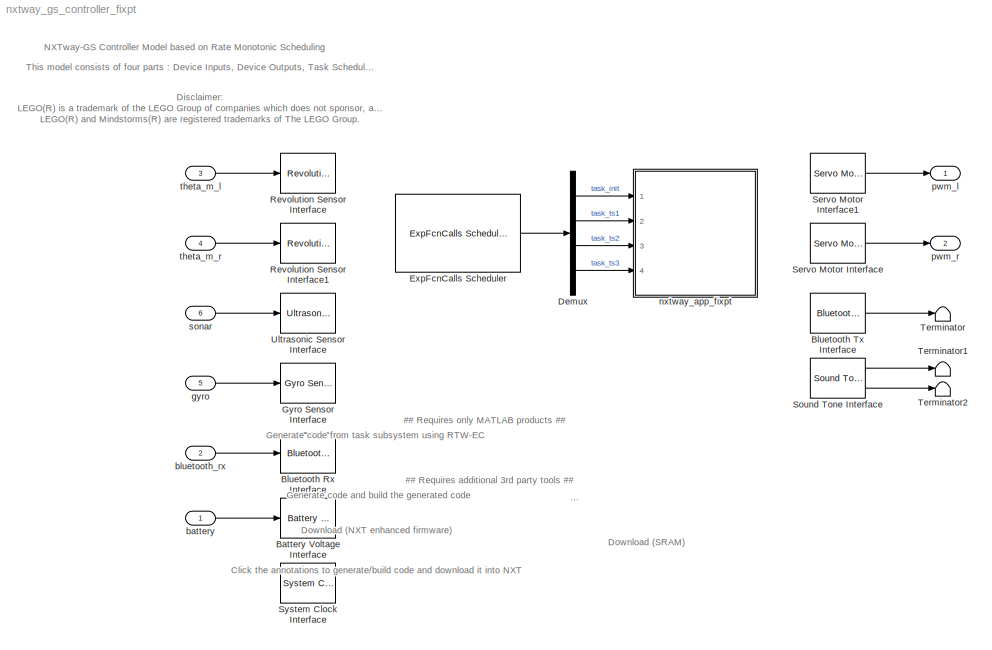
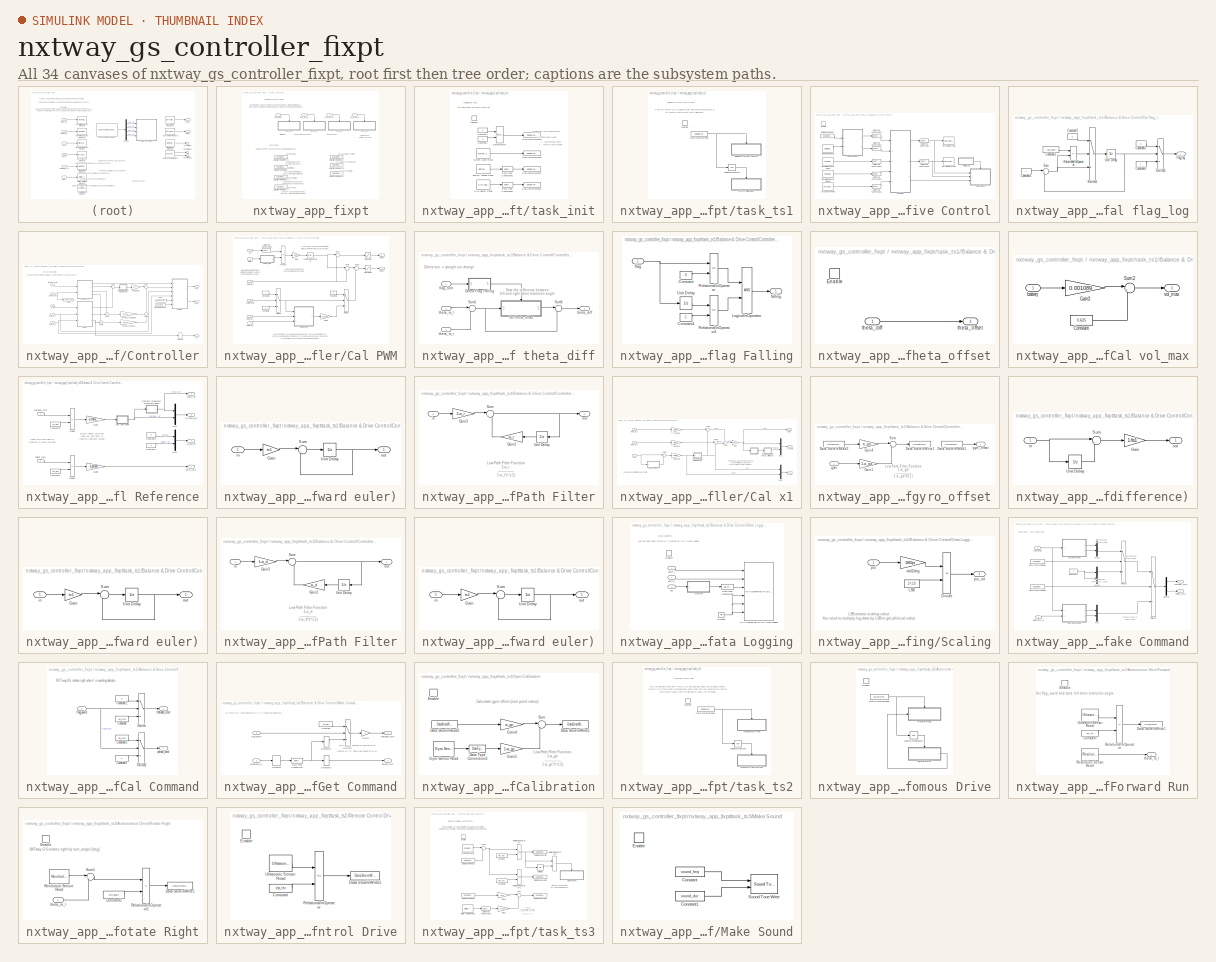
[diagram: thumbnail index - all 34 canvases of the model, root first then tree order]
MODEL nxtway_gs_controller_fixpt
KIND model
CONFIG PreLoadFcn = param_nxtway_gs\nparam_controller_fixpt
BLOCK [Reference] Battery Voltage Interface  REF=ecrobot_nxt_lib/Battery Voltage\nInterface  (lib defined in mdl_4d1b16930ca4)
  AttributesFormatString = Priority = %<Priority>
  FunctionWithSeparateData = off
  Ports = [1]
  Priority = -1
  RTWMemSecDataConstants = Inherit from model
  RTWMemSecDataInternal = Inherit from model
  RTWMemSecDataParameters = Inherit from model
  RTWMemSecFuncExecute = Inherit from model
  RTWMemSecFuncInitTerm = Inherit from model
  ShowPortLabels = FromPortIcon
  SourceBlock = ecrobot_nxt_lib/Battery Voltage\nInterface
  SourceType = Battery Voltage Interface
  SystemSampleTime = -1
BLOCK [Reference] Bluetooth Rx Interface  REF=ecrobot_nxt_lib/Bluetooth Rx\nInterface  (lib defined in mdl_4d1b16930ca4)
  AttributesFormatString = Priority = %<Priority>
  FunctionWithSeparateData = off
  Ports = [1]
  Priority = -1
  RTWMemSecDataConstants = Inherit from model
  RTWMemSecDataInternal = Inherit from model
  RTWMemSecDataParameters = Inherit from model
  RTWMemSecFuncExecute = Inherit from model
  RTWMemSecFuncInitTerm = Inherit from model
  ShowPortLabels = FromPortIcon
  SourceBlock = ecrobot_nxt_lib/Bluetooth Rx\nInterface
  SourceType = Bluetooth Rx Interface
  SystemSampleTime = -1
BLOCK [Reference] Bluetooth Tx Interface  REF=ecrobot_nxt_lib/Bluetooth Tx\nInterface  (lib defined in mdl_4d1b16930ca4)
  AttributesFormatString = Priority = %<Priority>
  FunctionWithSeparateData = off
  Ports = [0, 1]
  Priority = 1
  RTWMemSecDataConstants = Inherit from model
  RTWMemSecDataInternal = Inherit from model
  RTWMemSecDataParameters = Inherit from model
  RTWMemSecFuncExecute = Inherit from model
  RTWMemSecFuncInitTerm = Inherit from model
  ShowPortLabels = FromPortIcon
  SourceBlock = ecrobot_nxt_lib/Bluetooth Tx\nInterface
  SourceType = Bluetooth Rx Interface
  SystemSampleTime = -1
BLOCK [Demux] Demux
  DisplayOption = bar
  Ports = [1, 4]
BLOCK [Reference] ExpFcnCalls Scheduler  REF=ecrobot_nxt_lib/ExpFcnCalls Scheduler  (lib defined in mdl_4d1b16930ca4)
  AttributesFormatString = Priority = %<Priority>
  Ports = [0, 1]
  Priority = 0
  SourceBlock = ecrobot_nxt_lib/ExpFcnCalls Scheduler
  SourceType = Exported Function-Calls Scheduler
  bd_mode = Slave
  fcname = 'task_init', 'task_ts1', 'task_ts2', 'task_ts3'
  fctrigger = [0, ts1*1000, ts2*1000, ts3*1000]
  platform = LEJOS+OSEK
  stacksize = [512, 512, 512, 512]
  ts = 0.001
BLOCK [Reference] Gyro Sensor Interface  REF=ecrobot_nxt_lib/Gyro Sensor\nInterface  (lib defined in mdl_4d1b16930ca4)
  AttributesFormatString = Port = %<ip>\\nPriority = %<Priority>
  FunctionWithSeparateData = off
  Ports = [1]
  Priority = -1
  RTWMemSecDataConstants = Inherit from model
  RTWMemSecDataInternal = Inherit from model
  RTWMemSecDataParameters = Inherit from model
  RTWMemSecFuncExecute = Inherit from model
  RTWMemSecFuncInitTerm = Inherit from model
  ShowPortLabels = FromPortIcon
  SourceBlock = ecrobot_nxt_lib/Gyro Sensor\nInterface
  SourceType = Gyro Sensor Interface
  SystemSampleTime = -1
  ip = S4
BLOCK [Reference] Revolution Sensor Interface  REF=ecrobot_nxt_lib/Revolution Sensor\nInterface  (lib defined in mdl_4d1b16930ca4)
  AttributesFormatString = Port = %<ip>\\nPriority = %<Priority>
  FunctionWithSeparateData = off
  Ports = [1]
  Priority = -1
  RTWMemSecDataConstants = Inherit from model
  RTWMemSecDataInternal = Inherit from model
  RTWMemSecDataParameters = Inherit from model
  RTWMemSecFuncExecute = Inherit from model
  RTWMemSecFuncInitTerm = Inherit from model
  ShowPortLabels = FromPortIcon
  SourceBlock = ecrobot_nxt_lib/Revolution Sensor\nInterface
  SourceType = Revolution Sensor Interface
  SystemSampleTime = -1
  ip = C
BLOCK [Reference] Revolution Sensor Interface1  REF=ecrobot_nxt_lib/Revolution Sensor\nInterface  (lib defined in mdl_4d1b16930ca4)
  AttributesFormatString = Port = %<ip>\\nPriority = %<Priority>
  FunctionWithSeparateData = off
  Ports = [1]
  Priority = -1
  RTWMemSecDataConstants = Inherit from model
  RTWMemSecDataInternal = Inherit from model
  RTWMemSecDataParameters = Inherit from model
  RTWMemSecFuncExecute = Inherit from model
  RTWMemSecFuncInitTerm = Inherit from model
  ShowPortLabels = FromPortIcon
  SourceBlock = ecrobot_nxt_lib/Revolution Sensor\nInterface
  SourceType = Revolution Sensor Interface
  SystemSampleTime = -1
  ip = B
BLOCK [Reference] Servo Motor Interface  REF=ecrobot_nxt_lib/Servo Motor\nInterface  (lib defined in mdl_4d1b16930ca4)
  AttributesFormatString = Port = %<ip>\\nPriority = %<Priority>
  FunctionWithSeparateData = off
  Ports = [0, 1]
  Priority = 1
  RTWMemSecDataConstants = Inherit from model
  RTWMemSecDataInternal = Inherit from model
  RTWMemSecDataParameters = Inherit from model
  RTWMemSecFuncExecute = Inherit from model
  RTWMemSecFuncInitTerm = Inherit from model
  ShowPortLabels = FromPortIcon
  SourceBlock = ecrobot_nxt_lib/Servo Motor\nInterface
  SourceType = Servo Motor Interface
  SystemSampleTime = -1
  ip = B
  mode = Brake
BLOCK [Reference] Servo Motor Interface1  REF=ecrobot_nxt_lib/Servo Motor\nInterface  (lib defined in mdl_4d1b16930ca4)
  AttributesFormatString = Port = %<ip>\\nPriority = %<Priority>
  FunctionWithSeparateData = off
  Ports = [0, 1]
  Priority = 1
  RTWMemSecDataConstants = Inherit from model
  RTWMemSecDataInternal = Inherit from model
  RTWMemSecDataParameters = Inherit from model
  RTWMemSecFuncExecute = Inherit from model
  RTWMemSecFuncInitTerm = Inherit from model
  ShowPortLabels = FromPortIcon
  SourceBlock = ecrobot_nxt_lib/Servo Motor\nInterface
  SourceType = Servo Motor Interface
  SystemSampleTime = -1
  ip = C
  mode = Brake
BLOCK [Reference] Sound Tone Interface  REF=ecrobot_nxt_lib/Sound Tone \nInterface  (lib defined in mdl_4d1b16930ca4)
  AttributesFormatString = Priority = %<Priority>
  FunctionWithSeparateData = off
  Ports = [0, 2]
  Priority = 1
  RTWMemSecDataConstants = Inherit from model
  RTWMemSecDataInternal = Inherit from model
  RTWMemSecDataParameters = Inherit from model
  RTWMemSecFuncExecute = Inherit from model
  RTWMemSecFuncInitTerm = Inherit from model
  ShowPortLabels = FromPortIcon
  SourceBlock = ecrobot_nxt_lib/Sound Tone \nInterface
  SourceType = Sound Tone Interface
  SystemSampleTime = -1
BLOCK [Reference] System Clock Interface  REF=ecrobot_nxt_lib/System Clock\nInterface  (lib defined in mdl_4d1b16930ca4)
  AttributesFormatString = Priority = %<Priority>
  FunctionWithSeparateData = off
  Ports = []
  Priority = -1
  RTWMemSecDataConstants = Inherit from model
  RTWMemSecDataInternal = Inherit from model
  RTWMemSecDataParameters = Inherit from model
  RTWMemSecFuncExecute = Inherit from model
  RTWMemSecFuncInitTerm = Inherit from model
  ShowPortLabels = FromPortIcon
  SourceBlock = ecrobot_nxt_lib/System Clock\nInterface
  SourceType = System Clock Interface
  SystemSampleTime = -1
BLOCK [Terminator] Terminator
BLOCK [Terminator] Terminator1
BLOCK [Terminator] Terminator2
BLOCK [Reference] Ultrasonic Sensor Interface  REF=ecrobot_nxt_lib/Ultrasonic Sensor\nInterface  (lib defined in mdl_4d1b16930ca4)
  AttributesFormatString = Port = %<ip>\\nPriority = %<Priority>
  FunctionWithSeparateData = off
  Ports = [1]
  Priority = -1
  RTWMemSecDataConstants = Inherit from model
  RTWMemSecDataInternal = Inherit from model
  RTWMemSecDataParameters = Inherit from model
  RTWMemSecFuncExecute = Inherit from model
  RTWMemSecFuncInitTerm = Inherit from model
  ShowPortLabels = FromPortIcon
  SourceBlock = ecrobot_nxt_lib/Ultrasonic Sensor\nInterface
  SourceType = Ultrasonic Sensor Interface
  SystemSampleTime = -1
  ip = S2
BLOCK [Inport] battery
  DataType = uint16
  IconDisplay = Port number
  OutDataType = sfix(16)
  OutScaling = 2^0
BLOCK [Inport] bluetooth_rx
  DataType = uint8
  IconDisplay = Port number
  OutDataType = sfix(16)
  OutScaling = 2^0
  Port = 2
BLOCK [Inport] gyro
  DataType = uint16
  IconDisplay = Port number
  OutDataType = sfix(16)
  OutScaling = 2^0
  Port = 5
BLOCK [SubSystem] nxtway_app_fixpt
  FunctionWithSeparateData = off
  MinAlgLoopOccurrences = off
  Ports = [4]
  RTWSystemCode = Auto
BLOCK [DataStoreMemory] nxtway_app_fixpt/Data Store\nMemory
  AttributesFormatString = DataType = %<OutDataTypeStr>
  DataStoreName = flag_start
  DataType = boolean
  OutDataType = sfix(16)
  OutScaling = 2^0
  RTWStateStorageClass = Auto
  ReadBeforeWriteMsg = warning
  SignalType = real
  VectorParams1D = on
  WriteAfterReadMsg = warning
  WriteAfterWriteMsg = warning
BLOCK [DataStoreMemory] nxtway_app_fixpt/Data Store\nMemory1
  AttributesFormatString = DataType = %<OutDataTypeStr>
  DataStoreName = flag_avoid
  DataType = boolean
  OutDataType = sfix(16)
  OutScaling = 2^0
  RTWStateStorageClass = Auto
  ReadBeforeWriteMsg = warning
  SignalType = real
  VectorParams1D = on
  WriteAfterReadMsg = warning
  WriteAfterWriteMsg = warning
BLOCK [DataStoreMemory] nxtway_app_fixpt/Data Store\nMemory3
  AttributesFormatString = DataType = %<OutDataTypeStr>
  DataStoreName = flag_mode
  DataType = boolean
  OutDataType = sfix(16)
  OutScaling = 2^0
  RTWStateStorageClass = Auto
  ReadBeforeWriteMsg = warning
  SignalType = real
  VectorParams1D = on
  WriteAfterReadMsg = warning
  WriteAfterWriteMsg = warning
BLOCK [DataStoreMemory] nxtway_app_fixpt/Data Store\nMemory4
  AttributesFormatString = DataType = %<OutDataTypeStr>
  DataStoreName = flag_auto
  DataType = boolean
  OutDataType = sfix(16)
  OutScaling = 2^0
  RTWStateStorageClass = Auto
  ReadBeforeWriteMsg = warning
  SignalType = real
  VectorParams1D = on
  WriteAfterReadMsg = warning
  WriteAfterWriteMsg = warning
BLOCK [DataStoreMemory] nxtway_app_fixpt/Data Store\nMemory5
  AttributesFormatString = DataType = %<OutDataTypeStr>
  DataStoreName = gyro_offset
  DataType = Specify via dialog
  OutDataType = dt_psi
  RTWStateStorageClass = Auto
  ReadBeforeWriteMsg = warning
  SignalType = real
  VectorParams1D = on
  WriteAfterReadMsg = warning
  WriteAfterWriteMsg = warning
BLOCK [DataStoreMemory] nxtway_app_fixpt/Data Store\nMemory7
  AttributesFormatString = DataType = %<OutDataTypeStr>
  DataStoreName = battery
  DataType = Specify via dialog
  OutDataType = dt_battery
  RTWStateStorageClass = Auto
  ReadBeforeWriteMsg = warning
  SignalType = real
  VectorParams1D = on
  WriteAfterReadMsg = warning
  WriteAfterWriteMsg = warning
BLOCK [DataStoreMemory] nxtway_app_fixpt/Data Store\nMemory9
  AttributesFormatString = DataType = %<OutDataTypeStr>
  DataStoreName = start_time
  DataType = uint32
  OutDataType = sfix(16)
  OutScaling = 2^0
  RTWStateStorageClass = Auto
  ReadBeforeWriteMsg = warning
  SignalType = real
  VectorParams1D = on
  WriteAfterReadMsg = warning
  WriteAfterWriteMsg = warning
BLOCK [SubSystem] nxtway_app_fixpt/task_init
  FunctionWithSeparateData = off
  MinAlgLoopOccurrences = off
  Ports = [0, 0, 0, 1]
  RTWSystemCode = Auto
  TreatAsAtomicUnit = on
BLOCK [Reference] nxtway_app_fixpt/task_init/Battery Voltage Read  REF=ecrobot_nxt_lib/Battery Voltage\nRead  (lib defined in mdl_4d1b16930ca4)
  FunctionWithSeparateData = off
  Ports = [0, 1]
  RTWMemSecDataConstants = Inherit from model
  RTWMemSecDataInternal = Inherit from model
  RTWMemSecDataParameters = Inherit from model
  RTWMemSecFuncExecute = Inherit from model
  RTWMemSecFuncInitTerm = Inherit from model
  ShowPortLabels = FromPortIcon
  SourceBlock = ecrobot_nxt_lib/Battery Voltage\nRead
  SourceType = Battery Voltage Read
  SystemSampleTime = -1
BLOCK [Constant] nxtway_app_fixpt/task_init/Constant1
  AttributesFormatString = DataType = %<OutDataTypeStr>
  OutDataType = sfix(16)
  OutDataTypeMode = boolean
  OutScaling = 2^0
  SampleTime = -1
  Value = 0
BLOCK [Constant] nxtway_app_fixpt/task_init/Constant7
  AttributesFormatString = DataType = %<OutDataTypeStr>
  OutDataType = sfix(16)
  OutDataTypeMode = boolean
  OutScaling = 2^0
  SampleTime = -1
BLOCK [DataStoreWrite] nxtway_app_fixpt/task_init/Data Store\nWrite1
  DataStoreName = gyro_offset
  SampleTime = -1
BLOCK [DataStoreWrite] nxtway_app_fixpt/task_init/Data Store\nWrite5
  DataStoreName = flag_mode
  SampleTime = -1
BLOCK [DataStoreWrite] nxtway_app_fixpt/task_init/Data Store\nWrite7
  DataStoreName = battery
  SampleTime = -1
BLOCK [DataStoreWrite] nxtway_app_fixpt/task_init/Data Store\nWrite8
  DataStoreName = start_time
  SampleTime = -1
BLOCK [DataTypeConversion] nxtway_app_fixpt/task_init/Data Type Conversion1
  AttributesFormatString = Round = %<RndMeth>
  OutDataType = dt_battery
  OutDataTypeMode = Specify via dialog
  RndMeth = Simplest
  SaturateOnIntegerOverflow = off
BLOCK [DataTypeConversion] nxtway_app_fixpt/task_init/Data Type Conversion2
  AttributesFormatString = Round = %<RndMeth>
  OutDataType = dt_psi
  OutDataTypeMode = Specify via dialog
  RndMeth = Simplest
  SaturateOnIntegerOverflow = off
BLOCK [Reference] nxtway_app_fixpt/task_init/Gyro Sensor Read  REF=ecrobot_nxt_lib/Gyro Sensor\nRead  (lib defined in mdl_4d1b16930ca4)
  AttributesFormatString = Port = %<ip>
  FunctionWithSeparateData = off
  Ports = [0, 1]
  RTWMemSecDataConstants = Inherit from model
  RTWMemSecDataInternal = Inherit from model
  RTWMemSecDataParameters = Inherit from model
  RTWMemSecFuncExecute = Inherit from model
  RTWMemSecFuncInitTerm = Inherit from model
  ShowPortLabels = FromPortIcon
  SourceBlock = ecrobot_nxt_lib/Gyro Sensor\nRead
  SourceType = Gyro Sensor Read
  SystemSampleTime = -1
  ip = S4
BLOCK [Reference] nxtway_app_fixpt/task_init/Manual Switch  REF=simulink/Signal\nRouting/Manual Switch
  FunctionWithSeparateData = off
  Ports = [2, 1]
  RTWMemSecDataConstants = Inherit from model
  RTWMemSecDataInternal = Inherit from model
  RTWMemSecDataParameters = Inherit from model
  RTWMemSecFuncExecute = Inherit from model
  RTWMemSecFuncInitTerm = Inherit from model
  ShowPortLabels = FromPortIcon
  SourceBlock = simulink/Signal\nRouting/Manual Switch
  SourceType = Manual Switch
  SystemSampleTime = -1
  action = 0
  sw = 0
  varsize = off
BLOCK [Reference] nxtway_app_fixpt/task_init/System Clock Read  REF=ecrobot_nxt_lib/System Clock\nRead  (lib defined in mdl_4d1b16930ca4)
  FunctionWithSeparateData = off
  Ports = [0, 1]
  RTWMemSecDataConstants = Inherit from model
  RTWMemSecDataInternal = Inherit from model
  RTWMemSecDataParameters = Inherit from model
  RTWMemSecFuncExecute = Inherit from model
  RTWMemSecFuncInitTerm = Inherit from model
  ShowPortLabels = FromPortIcon
  SourceBlock = ecrobot_nxt_lib/System Clock\nRead
  SourceType = System Clock Read
  SystemSampleTime = -1
BLOCK [TriggerPort] nxtway_app_fixpt/task_init/function
  Ports = []
  StatesWhenEnabling = held
  TriggerType = function-call
BLOCK [Inport] nxtway_app_fixpt/task_init_fc
  IconDisplay = Port number
  OutDataType = sfix(16)
  OutScaling = 2^0
BLOCK [SubSystem] nxtway_app_fixpt/task_ts1
  FunctionWithSeparateData = off
  MinAlgLoopOccurrences = off
  Ports = [0, 0, 0, 1]
  RTWSystemCode = Auto
  TreatAsAtomicUnit = on
BLOCK [SubSystem] nxtway_app_fixpt/task_ts1/Balance & Drive Control
  FunctionWithSeparateData = off
  MinAlgLoopOccurrences = off
  Ports = [0, 0, 1]
  RTWSystemCode = Auto
BLOCK [Reference] nxtway_app_fixpt/task_ts1/Balance & Drive Control/Bluetooth Rx Read  REF=ecrobot_nxt_lib/Bluetooth Rx\nRead  (lib defined in mdl_4d1b16930ca4)
  Ports = [0, 1]
  SourceBlock = ecrobot_nxt_lib/Bluetooth Rx\nRead
  SourceType = Bluetooth Rx Read
BLOCK [SubSystem] nxtway_app_fixpt/task_ts1/Balance & Drive Control/Cal flag_log
  FunctionWithSeparateData = off
  MinAlgLoopOccurrences = off
  Ports = [0, 1]
  RTWSystemCode = Auto
BLOCK [Constant] nxtway_app_fixpt/task_ts1/Balance & Drive Control/Cal flag_log/Constant1
  AttributesFormatString = DataType = %<OutDataTypeStr>
  OutDataType = FIXDT
  OutDataTypeMode = uint8
  OutScaling = 2^0
  SampleTime = -1
  VectorParams1D = off
BLOCK [Constant] nxtway_app_fixpt/task_ts1/Balance & Drive Control/Cal flag_log/Constant2
  AttributesFormatString = DataType = %<OutDataTypeStr>
  OutDataType = FIXDT
  OutDataTypeMode = uint8
  OutScaling = 2^0
  SampleTime = -1
  Value = log_count
  VectorParams1D = off
BLOCK [Constant] nxtway_app_fixpt/task_ts1/Balance & Drive Control/Cal flag_log/Constant3
  AttributesFormatString = DataType = %<OutDataTypeStr>
  OutDataType = FIXDT
  OutDataTypeMode = uint8
  OutScaling = 2^0
  SampleTime = -1
  Value = 0
  VectorParams1D = off
BLOCK [Constant] nxtway_app_fixpt/task_ts1/Balance & Drive Control/Cal flag_log/Constant5
  AttributesFormatString = DataType = %<OutDataTypeStr>
  OutDataType = sfix(16)
  OutDataTypeMode = boolean
  OutScaling = 2^0
  SampleTime = -1
  Value = 0
BLOCK [Constant] nxtway_app_fixpt/task_ts1/Balance & Drive Control/Cal flag_log/Constant6
  AttributesFormatString = DataType = %<OutDataTypeStr>
  OutDataType = sfix(16)
  OutDataTypeMode = boolean
  OutScaling = 2^0
  SampleTime = -1
BLOCK [RelationalOperator] nxtway_app_fixpt/task_ts1/Balance & Drive Control/Cal flag_log/Relational\nOperator
  InputSameDT = off
  LogicOutDataTypeMode = boolean
  Operator = ==
BLOCK [Sum] nxtway_app_fixpt/task_ts1/Balance & Drive Control/Cal flag_log/Sum
  CollapseMode = All dimensions
  IconShape = round
  InputSameDT = off
  Inputs = |++
  OutDataType = sfix(16)
  OutScaling = 2^0
  Ports = [2, 1]
  SaturateOnIntegerOverflow = off
BLOCK [Switch] nxtway_app_fixpt/task_ts1/Balance & Drive Control/Cal flag_log/Switch1
  Criteria = u2 ~= 0
  InputSameDT = off
  OutDataType = sfix(16)
  OutScaling = 2^0
  SaturateOnIntegerOverflow = off
BLOCK [Switch] nxtway_app_fixpt/task_ts1/Balance & Drive Control/Cal flag_log/Switch3
  Criteria = u2 ~= 0
  InputSameDT = off
  OutDataType = sfix(16)
  OutScaling = 2^0
  SaturateOnIntegerOverflow = off
BLOCK [UnitDelay] nxtway_app_fixpt/task_ts1/Balance & Drive Control/Cal flag_log/Unit Delay
  SampleTime = -1
BLOCK [Outport] nxtway_app_fixpt/task_ts1/Balance & Drive Control/Cal flag_log/flag_log
  IconDisplay = Port number
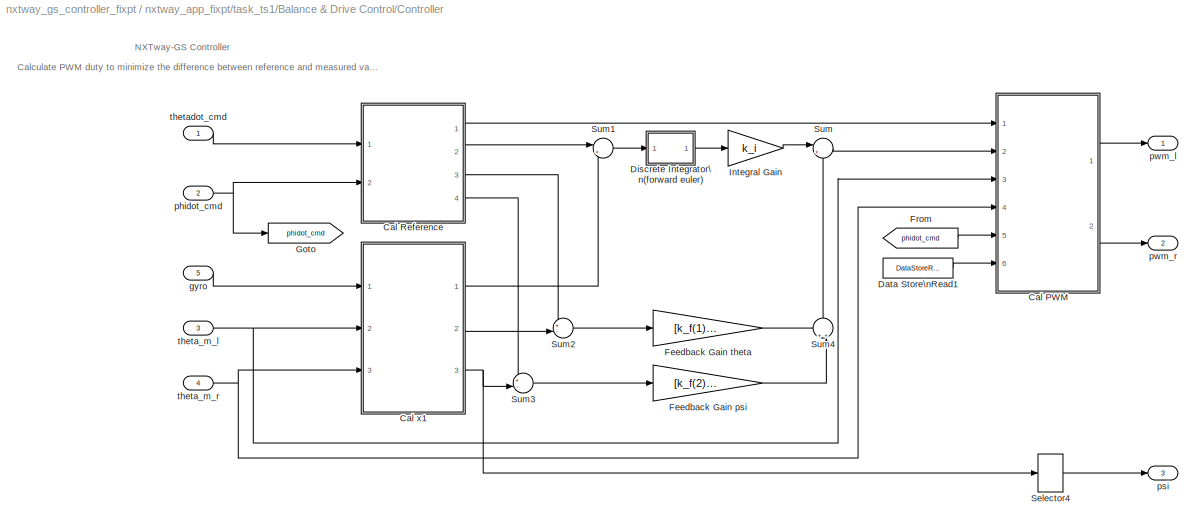
BLOCK [SubSystem] nxtway_app_fixpt/task_ts1/Balance & Drive Control/Controller
  FunctionWithSeparateData = off
  MinAlgLoopOccurrences = off
  Ports = [5, 3]
  RTWSystemCode = Auto
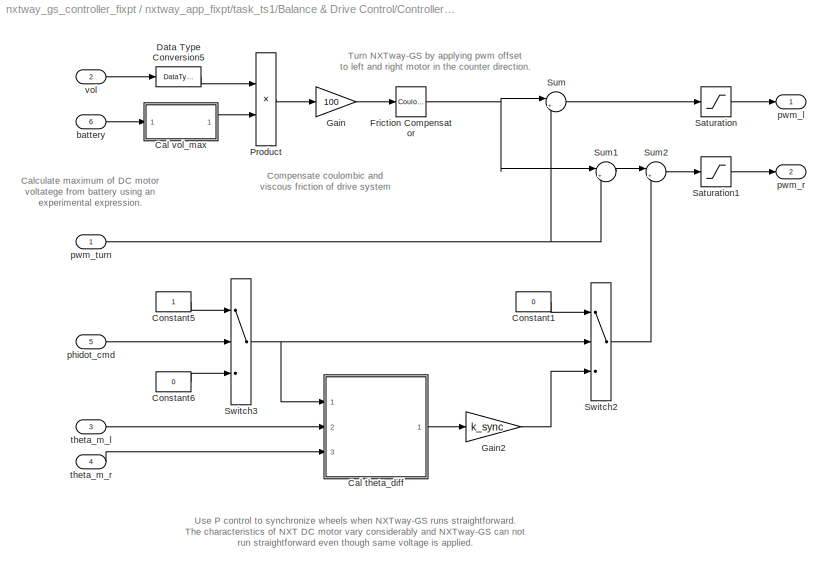
BLOCK [SubSystem] nxtway_app_fixpt/task_ts1/Balance & Drive Control/Controller/Cal PWM
  FunctionWithSeparateData = off
  MinAlgLoopOccurrences = off
  Ports = [6, 2]
  RTWSystemCode = Auto
BLOCK [SubSystem] nxtway_app_fixpt/task_ts1/Balance & Drive Control/Controller/Cal PWM/Cal theta_diff
  FunctionWithSeparateData = off
  MinAlgLoopOccurrences = off
  Ports = [3, 1]
  RTWSystemCode = Auto
BLOCK [SubSystem] nxtway_app_fixpt/task_ts1/Balance & Drive Control/Controller/Cal PWM/Cal theta_diff/Detect Flag Falling
  FunctionWithSeparateData = off
  MinAlgLoopOccurrences = off
  Ports = [1, 1]
  RTWSystemCode = Auto
BLOCK [Constant] nxtway_app_fixpt/task_ts1/Balance & Drive Control/Controller/Cal PWM/Cal theta_diff/Detect Flag Falling/Constant
  AttributesFormatString = DataType = %<OutDataTypeStr>
  OutDataType = FIXDT
  OutDataTypeMode = boolean
  OutScaling = 2^0
  SampleTime = -1
  Value = 0
  VectorParams1D = off
BLOCK [Constant] nxtway_app_fixpt/task_ts1/Balance & Drive Control/Controller/Cal PWM/Cal theta_diff/Detect Flag Falling/Constant1
  AttributesFormatString = DataType = %<OutDataTypeStr>
  OutDataType = FIXDT
  OutDataTypeMode = boolean
  OutScaling = 2^0
  SampleTime = -1
  VectorParams1D = off
BLOCK [Logic] nxtway_app_fixpt/task_ts1/Balance & Drive Control/Controller/Cal PWM/Cal theta_diff/Detect Flag Falling/Logical\nOperator
  AllPortsSameDT = off
  OutDataTypeMode = boolean
  Ports = [2, 1]
BLOCK [RelationalOperator] nxtway_app_fixpt/task_ts1/Balance & Drive Control/Controller/Cal PWM/Cal theta_diff/Detect Flag Falling/Relational\nOperator
  InputSameDT = off
  LogicOutDataTypeMode = boolean
  Operator = ==
BLOCK [RelationalOperator] nxtway_app_fixpt/task_ts1/Balance & Drive Control/Controller/Cal PWM/Cal theta_diff/Detect Flag Falling/Relational\nOperator1
  InputSameDT = off
  LogicOutDataTypeMode = boolean
  Operator = ==
BLOCK [UnitDelay] nxtway_app_fixpt/task_ts1/Balance & Drive Control/Controller/Cal PWM/Cal theta_diff/Detect Flag Falling/Unit Delay
  SampleTime = -1
BLOCK [Outport] nxtway_app_fixpt/task_ts1/Balance & Drive Control/Controller/Cal PWM/Cal theta_diff/Detect Flag Falling/falling
  IconDisplay = Port number
  OutDataType = sfix(16)
  OutScaling = 2^0
BLOCK [Inport] nxtway_app_fixpt/task_ts1/Balance & Drive Control/Controller/Cal PWM/Cal theta_diff/Detect Flag Falling/flag
  IconDisplay = Port number
  OutDataType = sfix(16)
  OutScaling = 2^0
BLOCK [SubSystem] nxtway_app_fixpt/task_ts1/Balance & Drive Control/Controller/Cal PWM/Cal theta_diff/Set theta_offset
  FunctionWithSeparateData = off
  MinAlgLoopOccurrences = off
  Ports = [1, 1, 1]
  RTWSystemCode = Auto
BLOCK [EnablePort] nxtway_app_fixpt/task_ts1/Balance & Drive Control/Controller/Cal PWM/Cal theta_diff/Set theta_offset/Enable
  Ports = []
BLOCK [Inport] nxtway_app_fixpt/task_ts1/Balance & Drive Control/Controller/Cal PWM/Cal theta_diff/Set theta_offset/theta_diff
  IconDisplay = Port number
BLOCK [Outport] nxtway_app_fixpt/task_ts1/Balance & Drive Control/Controller/Cal PWM/Cal theta_diff/Set theta_offset/theta_offset
  IconDisplay = Port number
BLOCK [Sum] nxtway_app_fixpt/task_ts1/Balance & Drive Control/Controller/Cal PWM/Cal theta_diff/Sum1
  CollapseMode = All dimensions
  IconShape = round
  InputSameDT = off
  Inputs = |+-
  OutDataType = sfix(16)
  OutScaling = 2^0
  Ports = [2, 1]
  SaturateOnIntegerOverflow = off
BLOCK [Sum] nxtway_app_fixpt/task_ts1/Balance & Drive Control/Controller/Cal PWM/Cal theta_diff/Sum5
  CollapseMode = All dimensions
  IconShape = round
  InputSameDT = off
  Inputs = |-+
  OutDataType = sfix(16)
  OutScaling = 2^0
  Ports = [2, 1]
  SaturateOnIntegerOverflow = off
BLOCK [Inport] nxtway_app_fixpt/task_ts1/Balance & Drive Control/Controller/Cal PWM/Cal theta_diff/flag_turn
  IconDisplay = Port number
BLOCK [Outport] nxtway_app_fixpt/task_ts1/Balance & Drive Control/Controller/Cal PWM/Cal theta_diff/theta_diff
  IconDisplay = Port number
BLOCK [Inport] nxtway_app_fixpt/task_ts1/Balance & Drive Control/Controller/Cal PWM/Cal theta_diff/theta_m_l
  IconDisplay = Port number
  Port = 2
BLOCK [Inport] nxtway_app_fixpt/task_ts1/Balance & Drive Control/Controller/Cal PWM/Cal theta_diff/theta_m_r
  IconDisplay = Port number
  Port = 3
BLOCK [SubSystem] nxtway_app_fixpt/task_ts1/Balance & Drive Control/Controller/Cal PWM/Cal vol_max
  FunctionWithSeparateData = off
  MinAlgLoopOccurrences = off
  Ports = [1, 1]
  RTWSystemCode = Auto
BLOCK [Constant] nxtway_app_fixpt/task_ts1/Balance & Drive Control/Controller/Cal PWM/Cal vol_max/Constant
  AttributesFormatString = DataType = %<OutDataTypeStr>
  ConRadixGroup = Best Precision: Vector-wise
  OutDataType = dt_battery
  OutDataTypeMode = Specify via dialog
  SampleTime = -1
  Value = 0.625
BLOCK [Gain] nxtway_app_fixpt/task_ts1/Balance & Drive Control/Controller/Cal PWM/Cal vol_max/Gain3
  Gain = 0.001089
  OutDataType = sfix(16)
  OutScaling = 2^0
  ParameterDataType = sfix(16)
  ParameterScaling = 2^0
  SaturateOnIntegerOverflow = off
BLOCK [Sum] nxtway_app_fixpt/task_ts1/Balance & Drive Control/Controller/Cal PWM/Cal vol_max/Sum2
  CollapseMode = All dimensions
  IconShape = round
  InputSameDT = off
  Inputs = |+-
  OutDataType = sfix(16)
  OutScaling = 2^0
  Ports = [2, 1]
  SaturateOnIntegerOverflow = off
BLOCK [Inport] nxtway_app_fixpt/task_ts1/Balance & Drive Control/Controller/Cal PWM/Cal vol_max/battery
  IconDisplay = Port number
BLOCK [Outport] nxtway_app_fixpt/task_ts1/Balance & Drive Control/Controller/Cal PWM/Cal vol_max/vol_max
  IconDisplay = Port number
BLOCK [Constant] nxtway_app_fixpt/task_ts1/Balance & Drive Control/Controller/Cal PWM/Constant1
  AttributesFormatString = DataType = %<OutDataTypeStr>
  ConRadixGroup = Best Precision: Vector-wise
  OutDataType = dt_theta
  OutDataTypeMode = Specify via dialog
  SampleTime = -1
  Value = 0
BLOCK [Constant] nxtway_app_fixpt/task_ts1/Balance & Drive Control/Controller/Cal PWM/Constant5
  AttributesFormatString = DataType = %<OutDataTypeStr>
  OutDataType = sfix(16)
  OutDataTypeMode = boolean
  OutScaling = 2^0
  SampleTime = -1
BLOCK [Constant] nxtway_app_fixpt/task_ts1/Balance & Drive Control/Controller/Cal PWM/Constant6
  AttributesFormatString = DataType = %<OutDataTypeStr>
  OutDataType = sfix(16)
  OutDataTypeMode = boolean
  OutScaling = 2^0
  SampleTime = -1
  Value = 0
BLOCK [DataTypeConversion] nxtway_app_fixpt/task_ts1/Balance & Drive Control/Controller/Cal PWM/Data Type Conversion5
  AttributesFormatString = Round = %<RndMeth>
  OutDataType = fixdt(1, 32, 2^-27, 0)
  OutDataTypeMode = Specify via dialog
  RndMeth = Simplest
  SaturateOnIntegerOverflow = off
BLOCK [Reference] nxtway_app_fixpt/task_ts1/Balance & Drive Control/Controller/Cal PWM/Friction Compensator  REF=simulink/Discontinuities/Coulomb &\nViscous Friction
  AttributesFormatString = gain = %<gain>\\noffset = %<offset>
  FunctionWithSeparateData = off
  Ports = [1, 1]
  RTWMemSecDataConstants = Inherit from model
  RTWMemSecDataInternal = Inherit from model
  RTWMemSecDataParameters = Inherit from model
  RTWMemSecFuncExecute = Inherit from model
  RTWMemSecFuncInitTerm = Inherit from model
  ShowPortLabels = FromPortIcon
  SourceBlock = simulink/Discontinuities/Coulomb &\nViscous Friction
  SourceType = Coulombic and Viscous Friction
  SystemSampleTime = -1
  gain = pwm_gain
  offset = pwm_offset
BLOCK [Gain] nxtway_app_fixpt/task_ts1/Balance & Drive Control/Controller/Cal PWM/Gain
  Gain = 100
  OutDataType = sfix(16)
  OutScaling = 2^0
  ParameterDataType = sfix(16)
  ParameterScaling = 2^0
  SaturateOnIntegerOverflow = off
BLOCK [Gain] nxtway_app_fixpt/task_ts1/Balance & Drive Control/Controller/Cal PWM/Gain2
  Gain = k_sync
  OutDataType = sfix(16)
  OutScaling = 2^0
  ParameterDataType = sfix(16)
  ParameterScaling = 2^0
  SaturateOnIntegerOverflow = off
BLOCK [Product] nxtway_app_fixpt/task_ts1/Balance & Drive Control/Controller/Cal PWM/Product
  CollapseMode = All dimensions
  InputSameDT = off
  Inputs = */
  OutDataType = fixdt(1, 32, 2^-10, 0)
  OutDataTypeMode = Specify via dialog
  Ports = [2, 1]
  RndMeth = Simplest
  SaturateOnIntegerOverflow = off
BLOCK [Saturate] nxtway_app_fixpt/task_ts1/Balance & Drive Control/Controller/Cal PWM/Saturation
  AttributesFormatString = max = %<UpperLimit>\\nmin = %<LowerLimit>
  LowerLimit = -100
  UpperLimit = 100
BLOCK [Saturate] nxtway_app_fixpt/task_ts1/Balance & Drive Control/Controller/Cal PWM/Saturation1
  AttributesFormatString = max = %<UpperLimit>\\nmin = %<LowerLimit>
  LowerLimit = -100
  UpperLimit = 100
BLOCK [Sum] nxtway_app_fixpt/task_ts1/Balance & Drive Control/Controller/Cal PWM/Sum
  CollapseMode = All dimensions
  IconShape = round
  InputSameDT = off
  Inputs = |++
  OutDataType = sfix(16)
  OutScaling = 2^0
  Ports = [2, 1]
  SaturateOnIntegerOverflow = off
BLOCK [Sum] nxtway_app_fixpt/task_ts1/Balance & Drive Control/Controller/Cal PWM/Sum1
  CollapseMode = All dimensions
  IconShape = round
  InputSameDT = off
  Inputs = |+-
  OutDataType = sfix(16)
  OutScaling = 2^0
  Ports = [2, 1]
  SaturateOnIntegerOverflow = off
BLOCK [Sum] nxtway_app_fixpt/task_ts1/Balance & Drive Control/Controller/Cal PWM/Sum2
  CollapseMode = All dimensions
  IconShape = round
  InputSameDT = off
  Inputs = |++
  OutDataType = sfix(16)
  OutScaling = 2^0
  Ports = [2, 1]
  SaturateOnIntegerOverflow = off
BLOCK [Switch] nxtway_app_fixpt/task_ts1/Balance & Drive Control/Controller/Cal PWM/Switch2
  Criteria = u2 ~= 0
  InputSameDT = off
  OutDataType = sfix(16)
  OutScaling = 2^0
  SaturateOnIntegerOverflow = off
BLOCK [Switch] nxtway_app_fixpt/task_ts1/Balance & Drive Control/Controller/Cal PWM/Switch3
  Criteria = u2 ~= 0
  InputSameDT = off
  OutDataType = sfix(16)
  OutScaling = 2^0
  SaturateOnIntegerOverflow = off
BLOCK [Inport] nxtway_app_fixpt/task_ts1/Balance & Drive Control/Controller/Cal PWM/battery
  IconDisplay = Port number
  OutDataType = sfix(16)
  OutScaling = 2^0
  Port = 6
BLOCK [Inport] nxtway_app_fixpt/task_ts1/Balance & Drive Control/Controller/Cal PWM/phidot_cmd
  IconDisplay = Port number
  Port = 5
BLOCK [Outport] nxtway_app_fixpt/task_ts1/Balance & Drive Control/Controller/Cal PWM/pwm_l
  IconDisplay = Port number
  OutDataType = sfix(16)
  OutScaling = 2^0
BLOCK [Outport] nxtway_app_fixpt/task_ts1/Balance & Drive Control/Controller/Cal PWM/pwm_r
  IconDisplay = Port number
  OutDataType = sfix(16)
  OutScaling = 2^0
  Port = 2
BLOCK [Inport] nxtway_app_fixpt/task_ts1/Balance & Drive Control/Controller/Cal PWM/pwm_turn
  IconDisplay = Port number
BLOCK [Inport] nxtway_app_fixpt/task_ts1/Balance & Drive Control/Controller/Cal PWM/theta_m_l
  IconDisplay = Port number
  OutDataType = sfix(16)
  OutScaling = 2^0
  Port = 3
BLOCK [Inport] nxtway_app_fixpt/task_ts1/Balance & Drive Control/Controller/Cal PWM/theta_m_r
  IconDisplay = Port number
  OutDataType = sfix(16)
  OutScaling = 2^0
  Port = 4
BLOCK [Inport] nxtway_app_fixpt/task_ts1/Balance & Drive Control/Controller/Cal PWM/vol
  IconDisplay = Port number
  OutDataType = sfix(16)
  OutScaling = 2^0
  Port = 2
BLOCK [SubSystem] nxtway_app_fixpt/task_ts1/Balance & Drive Control/Controller/Cal Reference
  FunctionWithSeparateData = off
  MinAlgLoopOccurrences = off
  Ports = [2, 4]
  RTWSystemCode = Auto
BLOCK [Constant] nxtway_app_fixpt/task_ts1/Balance & Drive Control/Controller/Cal Reference/Constant1
  AttributesFormatString = DataType = %<OutDataTypeStr>
  ConRadixGroup = Best Precision: Vector-wise
  OutDataType = dt_theta
  OutDataTypeMode = int8
  SampleTime = -1
  Value = gp_max
  VectorParams1D = off
BLOCK [Constant] nxtway_app_fixpt/task_ts1/Balance & Drive Control/Controller/Cal Reference/Constant2
  AttributesFormatString = DataType = %<OutDataTypeStr>
  ConRadixGroup = Best Precision: Vector-wise
  OutDataType = dt_psi
  OutDataTypeMode = Specify via dialog
  SampleTime = -1
  Value = 0
  VectorParams1D = off
BLOCK [Constant] nxtway_app_fixpt/task_ts1/Balance & Drive Control/Controller/Cal Reference/Constant3
  AttributesFormatString = DataType = %<OutDataTypeStr>
  ConRadixGroup = Best Precision: Vector-wise
  OutDataType = dt_psi
  OutDataTypeMode = Specify via dialog
  SampleTime = -1
  Value = 0
  VectorParams1D = off
BLOCK [Constant] nxtway_app_fixpt/task_ts1/Balance & Drive Control/Controller/Cal Reference/Constant6
  AttributesFormatString = DataType = %<OutDataTypeStr>
  ConRadixGroup = Best Precision: Vector-wise
  OutDataType = dt_theta
  OutDataTypeMode = int8
  SampleTime = -1
  Value = gp_max
  VectorParams1D = off
BLOCK [SubSystem] nxtway_app_fixpt/task_ts1/Balance & Drive Control/Controller/Cal Reference/Discrete Integrator\n(forward euler)
  FunctionWithSeparateData = off
  MinAlgLoopOccurrences = off
  Ports = [1, 1]
  RTWSystemCode = Auto
BLOCK [Gain] nxtway_app_fixpt/task_ts1/Balance & Drive Control/Controller/Cal Reference/Discrete Integrator\n(forward euler)/Gain
  Gain = ts1
  OutDataType = sfix(16)
  OutScaling = 2^0
  ParameterDataType = sfix(16)
  ParameterScaling = 2^0
  SaturateOnIntegerOverflow = off
BLOCK [Sum] nxtway_app_fixpt/task_ts1/Balance & Drive Control/Controller/Cal Reference/Discrete Integrator\n(forward euler)/Sum
  CollapseMode = All dimensions
  IconShape = round
  InputSameDT = off
  Inputs = |++
  OutDataType = sfix(16)
  OutScaling = 2^0
  Ports = [2, 1]
  SaturateOnIntegerOverflow = off
BLOCK [UnitDelay] nxtway_app_fixpt/task_ts1/Balance & Drive Control/Controller/Cal Reference/Discrete Integrator\n(forward euler)/Unit Delay
  SampleTime = -1
BLOCK [Inport] nxtway_app_fixpt/task_ts1/Balance & Drive Control/Controller/Cal Reference/Discrete Integrator\n(forward euler)/in
  IconDisplay = Port number
  OutDataType = sfix(16)
  OutScaling = 2^0
BLOCK [Outport] nxtway_app_fixpt/task_ts1/Balance & Drive Control/Controller/Cal Reference/Discrete Integrator\n(forward euler)/out
  IconDisplay = Port number
  OutDataType = sfix(16)
  OutScaling = 2^0
BLOCK [Product] nxtway_app_fixpt/task_ts1/Balance & Drive Control/Controller/Cal Reference/Divide
  CollapseMode = All dimensions
  InputSameDT = off
  Inputs = */
  OutDataType = sfix(16)
  OutScaling = 2^-10
  Ports = [2, 1]
  RndMeth = Simplest
  SaturateOnIntegerOverflow = off
BLOCK [Product] nxtway_app_fixpt/task_ts1/Balance & Drive Control/Controller/Cal Reference/Divide1
  CollapseMode = All dimensions
  InputSameDT = off
  Inputs = */
  OutDataType = sfix(16)
  OutScaling = 2^-10
  Ports = [2, 1]
  RndMeth = Simplest
  SaturateOnIntegerOverflow = off
BLOCK [Gain] nxtway_app_fixpt/task_ts1/Balance & Drive Control/Controller/Cal Reference/Gain1
  Gain = k_thetadot
  OutDataType = sfix(16)
  OutScaling = 2^0
  ParameterDataType = sfix(16)
  ParameterScaling = 2^0
  SaturateOnIntegerOverflow = off
BLOCK [Gain] nxtway_app_fixpt/task_ts1/Balance & Drive Control/Controller/Cal Reference/Gain2
  Gain = k_phidot
  OutDataType = sfix(16)
  OutScaling = 2^0
  ParameterDataType = sfix(16)
  ParameterScaling = 2^0
  SaturateOnIntegerOverflow = off
BLOCK [SubSystem] nxtway_app_fixpt/task_ts1/Balance & Drive Control/Controller/Cal Reference/Low Path Filter
  FunctionWithSeparateData = off
  MinAlgLoopOccurrences = off
  Ports = [1, 1]
  RTWSystemCode = Auto
BLOCK [Gain] nxtway_app_fixpt/task_ts1/Balance & Drive Control/Controller/Cal Reference/Low Path Filter/Gain2
  Gain = a_r
  OutDataType = sfix(16)
  OutScaling = 2^0
  ParameterDataType = sfix(16)
  ParameterScaling = 2^0
  SaturateOnIntegerOverflow = off
BLOCK [Gain] nxtway_app_fixpt/task_ts1/Balance & Drive Control/Controller/Cal Reference/Low Path Filter/Gain3
  Gain = 1-a_r
  OutDataType = sfix(16)
  OutScaling = 2^0
  ParameterDataType = sfix(16)
  ParameterScaling = 2^0
  SaturateOnIntegerOverflow = off
BLOCK [Sum] nxtway_app_fixpt/task_ts1/Balance & Drive Control/Controller/Cal Reference/Low Path Filter/Sum
  CollapseMode = All dimensions
  IconShape = round
  InputSameDT = off
  Inputs = |++
  OutDataType = sfix(16)
  OutScaling = 2^0
  Ports = [2, 1]
  SaturateOnIntegerOverflow = off
BLOCK [UnitDelay] nxtway_app_fixpt/task_ts1/Balance & Drive Control/Controller/Cal Reference/Low Path Filter/Unit Delay
  SampleTime = -1
BLOCK [Inport] nxtway_app_fixpt/task_ts1/Balance & Drive Control/Controller/Cal Reference/Low Path Filter/in
  IconDisplay = Port number
BLOCK [Outport] nxtway_app_fixpt/task_ts1/Balance & Drive Control/Controller/Cal Reference/Low Path Filter/out
  IconDisplay = Port number
BLOCK [Mux] nxtway_app_fixpt/task_ts1/Balance & Drive Control/Controller/Cal Reference/Mux
  DisplayOption = bar
  Inputs = 2
  Ports = [2, 1]
BLOCK [Mux] nxtway_app_fixpt/task_ts1/Balance & Drive Control/Controller/Cal Reference/Mux1
  DisplayOption = bar
  Inputs = 2
  Ports = [2, 1]
BLOCK [Inport] nxtway_app_fixpt/task_ts1/Balance & Drive Control/Controller/Cal Reference/phidot_cmd
  IconDisplay = Port number
  Port = 2
BLOCK [Outport] nxtway_app_fixpt/task_ts1/Balance & Drive Control/Controller/Cal Reference/pwm_turn
  IconDisplay = Port number
BLOCK [Outport] nxtway_app_fixpt/task_ts1/Balance & Drive Control/Controller/Cal Reference/theta_ref
  IconDisplay = Port number
  Port = 2
BLOCK [Inport] nxtway_app_fixpt/task_ts1/Balance & Drive Control/Controller/Cal Reference/thetadot_cmd
  IconDisplay = Port number
BLOCK [Outport] nxtway_app_fixpt/task_ts1/Balance & Drive Control/Controller/Cal Reference/x1_psi_ref
  IconDisplay = Port number
  Port = 4
BLOCK [Outport] nxtway_app_fixpt/task_ts1/Balance & Drive Control/Controller/Cal Reference/x1_theta_ref
  IconDisplay = Port number
  Port = 3
BLOCK [SubSystem] nxtway_app_fixpt/task_ts1/Balance & Drive Control/Controller/Cal x1
  FunctionWithSeparateData = off
  MinAlgLoopOccurrences = off
  Ports = [3, 3]
  RTWSystemCode = Auto
BLOCK [SubSystem] nxtway_app_fixpt/task_ts1/Balance & Drive Control/Controller/Cal x1/Cal gyro_offset
  FunctionWithSeparateData = off
  MinAlgLoopOccurrences = off
  Ports = [1, 1]
  RTWSystemCode = Auto
BLOCK [DataStoreRead] nxtway_app_fixpt/task_ts1/Balance & Drive Control/Controller/Cal x1/Cal gyro_offset/Data Store\nRead1
  AttributesFormatString = Priority = %<Priority>
  DataStoreName = gyro_offset
  Priority = 1
  SampleTime = -1
BLOCK [DataStoreRead] nxtway_app_fixpt/task_ts1/Balance & Drive Control/Controller/Cal x1/Cal gyro_offset/Data Store\nRead2
  AttributesFormatString = Priority = %<Priority>
  DataStoreName = gyro_offset
  Priority = -1
  SampleTime = -1
BLOCK [DataStoreWrite] nxtway_app_fixpt/task_ts1/Balance & Drive Control/Controller/Cal x1/Cal gyro_offset/Data Store\nWrite1
  AttributesFormatString = Priority = %<Priority>
  DataStoreName = gyro_offset
  Priority = 0
  SampleTime = -1
BLOCK [Gain] nxtway_app_fixpt/task_ts1/Balance & Drive Control/Controller/Cal x1/Cal gyro_offset/Gain1
  Gain = 1-a_gd
  OutDataType = sfix(16)
  OutScaling = 2^0
  ParameterDataType = sfix(16)
  ParameterScaling = 2^0
  SaturateOnIntegerOverflow = off
BLOCK [Gain] nxtway_app_fixpt/task_ts1/Balance & Drive Control/Controller/Cal x1/Cal gyro_offset/Gain4
  Gain = a_gd
  OutDataType = sfix(16)
  OutScaling = 2^0
  ParameterDataType = sfix(16)
  ParameterScaling = 2^0
  SaturateOnIntegerOverflow = off
BLOCK [Sum] nxtway_app_fixpt/task_ts1/Balance & Drive Control/Controller/Cal x1/Cal gyro_offset/Sum
  CollapseMode = All dimensions
  IconShape = round
  InputSameDT = off
  Inputs = |++
  OutDataType = sfix(16)
  OutScaling = 2^0
  Ports = [2, 1]
  SaturateOnIntegerOverflow = off
BLOCK [Inport] nxtway_app_fixpt/task_ts1/Balance & Drive Control/Controller/Cal x1/Cal gyro_offset/gyro
  IconDisplay = Port number
  OutDataType = sfix(16)
  OutScaling = 2^0
BLOCK [Outport] nxtway_app_fixpt/task_ts1/Balance & Drive Control/Controller/Cal x1/Cal gyro_offset/gyro_offset
  IconDisplay = Port number
  OutDataType = sfix(16)
  OutScaling = 2^0
BLOCK [SubSystem] nxtway_app_fixpt/task_ts1/Balance & Drive Control/Controller/Cal x1/Discrete Derivative\n(backward difference)
  FunctionWithSeparateData = off
  MinAlgLoopOccurrences = off
  Ports = [1, 1]
  RTWSystemCode = Auto
BLOCK [Gain] nxtway_app_fixpt/task_ts1/Balance & Drive Control/Controller/Cal x1/Discrete Derivative\n(backward difference)/Gain
  Gain = 1/ts1
  OutDataType = sfix(16)
  OutScaling = 2^0
  ParameterDataType = sfix(16)
  ParameterScaling = 2^0
  SaturateOnIntegerOverflow = off
BLOCK [Sum] nxtway_app_fixpt/task_ts1/Balance & Drive Control/Controller/Cal x1/Discrete Derivative\n(backward difference)/Sum
  CollapseMode = All dimensions
  IconShape = round
  InputSameDT = off
  Inputs = |+-
  OutDataType = sfix(16)
  OutScaling = 2^0
  Ports = [2, 1]
  SaturateOnIntegerOverflow = off
BLOCK [UnitDelay] nxtway_app_fixpt/task_ts1/Balance & Drive Control/Controller/Cal x1/Discrete Derivative\n(backward difference)/Unit Delay
  SampleTime = -1
BLOCK [Inport] nxtway_app_fixpt/task_ts1/Balance & Drive Control/Controller/Cal x1/Discrete Derivative\n(backward difference)/in
  IconDisplay = Port number
  OutDataType = sfix(16)
  OutScaling = 2^0
BLOCK [Outport] nxtway_app_fixpt/task_ts1/Balance & Drive Control/Controller/Cal x1/Discrete Derivative\n(backward difference)/out
  IconDisplay = Port number
  OutDataType = sfix(16)
  OutScaling = 2^0
BLOCK [SubSystem] nxtway_app_fixpt/task_ts1/Balance & Drive Control/Controller/Cal x1/Discrete Integrator\n(forward euler)
  FunctionWithSeparateData = off
  MinAlgLoopOccurrences = off
  Ports = [1, 1]
  RTWSystemCode = Auto
BLOCK [Gain] nxtway_app_fixpt/task_ts1/Balance & Drive Control/Controller/Cal x1/Discrete Integrator\n(forward euler)/Gain
  Gain = ts1
  OutDataType = sfix(16)
  OutScaling = 2^0
  ParameterDataType = sfix(16)
  ParameterScaling = 2^0
  SaturateOnIntegerOverflow = off
BLOCK [Sum] nxtway_app_fixpt/task_ts1/Balance & Drive Control/Controller/Cal x1/Discrete Integrator\n(forward euler)/Sum
  CollapseMode = All dimensions
  IconShape = round
  InputSameDT = off
  Inputs = |++
  OutDataType = sfix(16)
  OutScaling = 2^0
  Ports = [2, 1]
  SaturateOnIntegerOverflow = off
BLOCK [UnitDelay] nxtway_app_fixpt/task_ts1/Balance & Drive Control/Controller/Cal x1/Discrete Integrator\n(forward euler)/Unit Delay
  SampleTime = -1
BLOCK [Inport] nxtway_app_fixpt/task_ts1/Balance & Drive Control/Controller/Cal x1/Discrete Integrator\n(forward euler)/in
  IconDisplay = Port number
  OutDataType = sfix(16)
  OutScaling = 2^0
BLOCK [Outport] nxtway_app_fixpt/task_ts1/Balance & Drive Control/Controller/Cal x1/Discrete Integrator\n(forward euler)/out
  IconDisplay = Port number
  OutDataType = sfix(16)
  OutScaling = 2^0
BLOCK [Gain] nxtway_app_fixpt/task_ts1/Balance & Drive Control/Controller/Cal x1/Gain
  Gain = 1/2
  OutDataType = sfix(16)
  OutScaling = 2^0
  ParameterDataType = sfix(16)
  ParameterScaling = 2^0
  SaturateOnIntegerOverflow = off
BLOCK [SubSystem] nxtway_app_fixpt/task_ts1/Balance & Drive Control/Controller/Cal x1/Low Path Filter
  FunctionWithSeparateData = off
  MinAlgLoopOccurrences = off
  Ports = [1, 1]
  RTWSystemCode = Auto
BLOCK [Gain] nxtway_app_fixpt/task_ts1/Balance & Drive Control/Controller/Cal x1/Low Path Filter/Gain2
  Gain = a_d
  OutDataType = sfix(16)
  OutScaling = 2^0
  ParameterDataType = sfix(16)
  ParameterScaling = 2^0
  SaturateOnIntegerOverflow = off
BLOCK [Gain] nxtway_app_fixpt/task_ts1/Balance & Drive Control/Controller/Cal x1/Low Path Filter/Gain3
  Gain = 1-a_d
  OutDataType = sfix(16)
  OutScaling = 2^0
  ParameterDataType = sfix(16)
  ParameterScaling = 2^0
  SaturateOnIntegerOverflow = off
BLOCK [Sum] nxtway_app_fixpt/task_ts1/Balance & Drive Control/Controller/Cal x1/Low Path Filter/Sum
  CollapseMode = All dimensions
  IconShape = round
  InputSameDT = off
  Inputs = |++
  OutDataType = sfix(16)
  OutScaling = 2^0
  Ports = [2, 1]
  SaturateOnIntegerOverflow = off
BLOCK [UnitDelay] nxtway_app_fixpt/task_ts1/Balance & Drive Control/Controller/Cal x1/Low Path Filter/Unit Delay
  SampleTime = -1
BLOCK [Inport] nxtway_app_fixpt/task_ts1/Balance & Drive Control/Controller/Cal x1/Low Path Filter/in
  IconDisplay = Port number
BLOCK [Outport] nxtway_app_fixpt/task_ts1/Balance & Drive Control/Controller/Cal x1/Low Path Filter/out
  IconDisplay = Port number
BLOCK [Mux] nxtway_app_fixpt/task_ts1/Balance & Drive Control/Controller/Cal x1/Mux1
  DisplayOption = bar
  Inputs = 2
  Ports = [2, 1]
BLOCK [Mux] nxtway_app_fixpt/task_ts1/Balance & Drive Control/Controller/Cal x1/Mux2
  DisplayOption = bar
  Inputs = 2
  Ports = [2, 1]
BLOCK [Sum] nxtway_app_fixpt/task_ts1/Balance & Drive Control/Controller/Cal x1/Sum1
  CollapseMode = All dimensions
  IconShape = round
  InputSameDT = off
  Inputs = ++|
  OutDataType = sfix(16)
  OutScaling = 2^0
  Ports = [2, 1]
  SaturateOnIntegerOverflow = off
BLOCK [Sum] nxtway_app_fixpt/task_ts1/Balance & Drive Control/Controller/Cal x1/Sum2
  CollapseMode = All dimensions
  IconShape = round
  InputSameDT = off
  Inputs = |+-
  OutDataType = sfix(16)
  OutScaling = 2^0
  Ports = [2, 1]
  SaturateOnIntegerOverflow = off
BLOCK [Sum] nxtway_app_fixpt/task_ts1/Balance & Drive Control/Controller/Cal x1/Sum4
  CollapseMode = All dimensions
  IconShape = round
  InputSameDT = off
  Inputs = |++
  OutDataType = sfix(16)
  OutScaling = 2^0
  Ports = [2, 1]
  SaturateOnIntegerOverflow = off
BLOCK [Sum] nxtway_app_fixpt/task_ts1/Balance & Drive Control/Controller/Cal x1/Sum6
  CollapseMode = All dimensions
  IconShape = round
  InputSameDT = off
  Inputs = |++
  OutDataType = sfix(16)
  OutScaling = 2^0
  Ports = [2, 1]
  SaturateOnIntegerOverflow = off
BLOCK [Gain] nxtway_app_fixpt/task_ts1/Balance & Drive Control/Controller/Cal x1/deg2rad
  Gain = pi/180
  OutDataType = sfix(16)
  OutScaling = 2^0
  ParameterDataType = sfix(16)
  ParameterScaling = 2^0
  SaturateOnIntegerOverflow = off
BLOCK [Gain] nxtway_app_fixpt/task_ts1/Balance & Drive Control/Controller/Cal x1/deg2rad1
  Gain = pi/180
  OutDataType = sfix(16)
  OutScaling = 2^0
  ParameterDataType = sfix(16)
  ParameterScaling = 2^0
  SaturateOnIntegerOverflow = off
BLOCK [Gain] nxtway_app_fixpt/task_ts1/Balance & Drive Control/Controller/Cal x1/deg2rad2
  Gain = pi/180
  OutDataType = sfix(16)
  OutScaling = 2^0
  ParameterDataType = sfix(16)
  ParameterScaling = 2^0
  SaturateOnIntegerOverflow = off
BLOCK [Inport] nxtway_app_fixpt/task_ts1/Balance & Drive Control/Controller/Cal x1/gyro
  IconDisplay = Port number
  OutDataType = sfix(16)
  OutScaling = 2^0
BLOCK [Outport] nxtway_app_fixpt/task_ts1/Balance & Drive Control/Controller/Cal x1/theta
  IconDisplay = Port number
  OutDataType = sfix(16)
  OutScaling = 2^0
BLOCK [Inport] nxtway_app_fixpt/task_ts1/Balance & Drive Control/Controller/Cal x1/theta_m_l
  IconDisplay = Port number
  OutDataType = sfix(16)
  OutScaling = 2^0
  Port = 2
BLOCK [Inport] nxtway_app_fixpt/task_ts1/Balance & Drive Control/Controller/Cal x1/theta_m_r
  IconDisplay = Port number
  OutDataType = sfix(16)
  OutScaling = 2^0
  Port = 3
BLOCK [Outport] nxtway_app_fixpt/task_ts1/Balance & Drive Control/Controller/Cal x1/x1_psi
  IconDisplay = Port number
  OutDataType = sfix(16)
  OutScaling = 2^0
  Port = 3
BLOCK [Outport] nxtway_app_fixpt/task_ts1/Balance & Drive Control/Controller/Cal x1/x1_theta
  IconDisplay = Port number
  OutDataType = sfix(16)
  OutScaling = 2^0
  Port = 2
BLOCK [DataStoreRead] nxtway_app_fixpt/task_ts1/Balance & Drive Control/Controller/Data Store\nRead1
  DataStoreName = battery
  SampleTime = -1
BLOCK [SubSystem] nxtway_app_fixpt/task_ts1/Balance & Drive Control/Controller/Discrete Integrator\n(forward euler)
  FunctionWithSeparateData = off
  MinAlgLoopOccurrences = off
  Ports = [1, 1]
  RTWSystemCode = Auto
BLOCK [Gain] nxtway_app_fixpt/task_ts1/Balance & Drive Control/Controller/Discrete Integrator\n(forward euler)/Gain
  Gain = ts1
  OutDataType = sfix(16)
  OutScaling = 2^0
  ParameterDataType = sfix(16)
  ParameterScaling = 2^0
  SaturateOnIntegerOverflow = off
BLOCK [Sum] nxtway_app_fixpt/task_ts1/Balance & Drive Control/Controller/Discrete Integrator\n(forward euler)/Sum
  CollapseMode = All dimensions
  IconShape = round
  InputSameDT = off
  Inputs = |++
  OutDataType = sfix(16)
  OutScaling = 2^0
  Ports = [2, 1]
  SaturateOnIntegerOverflow = off
BLOCK [UnitDelay] nxtway_app_fixpt/task_ts1/Balance & Drive Control/Controller/Discrete Integrator\n(forward euler)/Unit Delay
  SampleTime = -1
BLOCK [Inport] nxtway_app_fixpt/task_ts1/Balance & Drive Control/Controller/Discrete Integrator\n(forward euler)/in
  IconDisplay = Port number
  OutDataType = sfix(16)
  OutScaling = 2^0
BLOCK [Outport] nxtway_app_fixpt/task_ts1/Balance & Drive Control/Controller/Discrete Integrator\n(forward euler)/out
  IconDisplay = Port number
  OutDataType = sfix(16)
  OutScaling = 2^0
BLOCK [Gain] nxtway_app_fixpt/task_ts1/Balance & Drive Control/Controller/Feedback Gain psi
  Gain = [k_f(2), k_f(4)]
  Multiplication = Matrix(K*u)
  OutDataType = sfix(16)
  OutScaling = 2^0
  ParameterDataType = sfix(16)
  ParameterScaling = 2^0
  SaturateOnIntegerOverflow = off
BLOCK [Gain] nxtway_app_fixpt/task_ts1/Balance & Drive Control/Controller/Feedback Gain theta
  Gain = [k_f(1), k_f(3)]
  Multiplication = Matrix(K*u)
  OutDataType = sfix(16)
  OutScaling = 2^0
  ParameterDataType = sfix(16)
  ParameterScaling = 2^0
  SaturateOnIntegerOverflow = off
BLOCK [From] nxtway_app_fixpt/task_ts1/Balance & Drive Control/Controller/From
  CloseFcn = tagdialog Close
  GotoTag = phidot_cmd
BLOCK [Goto] nxtway_app_fixpt/task_ts1/Balance & Drive Control/Controller/Goto
  GotoTag = phidot_cmd
  TagVisibility = local
BLOCK [Gain] nxtway_app_fixpt/task_ts1/Balance & Drive Control/Controller/Integral Gain
  Gain = k_i
  Multiplication = Matrix(K*u)
  OutDataType = sfix(16)
  OutScaling = 2^0
  ParameterDataType = sfix(16)
  ParameterScaling = 2^0
  SaturateOnIntegerOverflow = off
BLOCK [Selector] nxtway_app_fixpt/task_ts1/Balance & Drive Control/Controller/Selector4
  IndexOptions = Index vector (dialog)
  Indices = 1
  InputPortWidth = 2
  OutputSizes = 1
  Ports = [1, 1]
BLOCK [Sum] nxtway_app_fixpt/task_ts1/Balance & Drive Control/Controller/Sum
  CollapseMode = All dimensions
  IconShape = round
  InputSameDT = off
  Inputs = |++
  OutDataType = sfix(16)
  OutScaling = 2^0
  Ports = [2, 1]
  SaturateOnIntegerOverflow = off
BLOCK [Sum] nxtway_app_fixpt/task_ts1/Balance & Drive Control/Controller/Sum1
  CollapseMode = All dimensions
  IconShape = round
  InputSameDT = off
  Inputs = |+-
  OutDataType = sfix(16)
  OutScaling = 2^0
  Ports = [2, 1]
  SaturateOnIntegerOverflow = off
BLOCK [Sum] nxtway_app_fixpt/task_ts1/Balance & Drive Control/Controller/Sum2
  CollapseMode = All dimensions
  IconShape = round
  InputSameDT = off
  Inputs = +-|
  OutDataType = sfix(16)
  OutScaling = 2^0
  Ports = [2, 1]
  SaturateOnIntegerOverflow = off
BLOCK [Sum] nxtway_app_fixpt/task_ts1/Balance & Drive Control/Controller/Sum3
  CollapseMode = All dimensions
  IconShape = round
  InputSameDT = off
  Inputs = +-|
  OutDataType = sfix(16)
  OutScaling = 2^0
  Ports = [2, 1]
  SaturateOnIntegerOverflow = off
BLOCK [Sum] nxtway_app_fixpt/task_ts1/Balance & Drive Control/Controller/Sum4
  CollapseMode = All dimensions
  IconShape = round
  InputSameDT = off
  Inputs = ++|
  OutDataType = sfix(16)
  OutScaling = 2^0
  Ports = [2, 1]
  SaturateOnIntegerOverflow = off
BLOCK [Inport] nxtway_app_fixpt/task_ts1/Balance & Drive Control/Controller/gyro
  IconDisplay = Port number
  Port = 5
BLOCK [Inport] nxtway_app_fixpt/task_ts1/Balance & Drive Control/Controller/phidot_cmd
  IconDisplay = Port number
  Port = 2
BLOCK [Outport] nxtway_app_fixpt/task_ts1/Balance & Drive Control/Controller/psi
  IconDisplay = Port number
  Port = 3
BLOCK [Outport] nxtway_app_fixpt/task_ts1/Balance & Drive Control/Controller/pwm_l
  IconDisplay = Port number
BLOCK [Outport] nxtway_app_fixpt/task_ts1/Balance & Drive Control/Controller/pwm_r
  IconDisplay = Port number
  Port = 2
BLOCK [Inport] nxtway_app_fixpt/task_ts1/Balance & Drive Control/Controller/theta_m_l
  IconDisplay = Port number
  Port = 3
BLOCK [Inport] nxtway_app_fixpt/task_ts1/Balance & Drive Control/Controller/theta_m_r
  IconDisplay = Port number
  Port = 4
BLOCK [Inport] nxtway_app_fixpt/task_ts1/Balance & Drive Control/Controller/thetadot_cmd
  IconDisplay = Port number
BLOCK [SubSystem] nxtway_app_fixpt/task_ts1/Balance & Drive Control/Data Logging
  FunctionWithSeparateData = off
  MinAlgLoopOccurrences = off
  Ports = [3, 0, 1]
  RTWSystemCode = Auto
  TreatAsAtomicUnit = on
BLOCK [DataTypeConversion] nxtway_app_fixpt/task_ts1/Balance & Drive Control/Data Logging/Data Type Conversion2
  AttributesFormatString = Round = %<RndMeth>
  OutDataType = sfix(16)
  OutDataTypeMode = int16
  OutScaling = 2^0
  RndMeth = Nearest
  SaturateOnIntegerOverflow = off
BLOCK [EnablePort] nxtway_app_fixpt/task_ts1/Balance & Drive Control/Data Logging/Enable
  Ports = []
BLOCK [Ground] nxtway_app_fixpt/task_ts1/Balance & Drive Control/Data Logging/Ground1
BLOCK [Reference] nxtway_app_fixpt/task_ts1/Balance & Drive Control/Data Logging/NXT GamePad \nADC Data Logger  REF=ecrobot_nxt_lib/NXT GamePad \nADC Data Logger  (lib defined in mdl_4d1b16930ca4)
  Ports = [6]
  SourceBlock = ecrobot_nxt_lib/NXT GamePad \nADC Data Logger
  SourceType = NXT GamePad ADC Data Logger
BLOCK [SubSystem] nxtway_app_fixpt/task_ts1/Balance & Drive Control/Data Logging/Scaling
  FunctionWithSeparateData = off
  MinAlgLoopOccurrences = off
  Ports = [1, 1]
  RTWSystemCode = Auto
BLOCK [Product] nxtway_app_fixpt/task_ts1/Balance & Drive Control/Data Logging/Scaling/Divide
  CollapseMode = All dimensions
  InputSameDT = off
  Inputs = */
  OutDataType = sfix(16)
  OutScaling = 2^-10
  Ports = [2, 1]
  RndMeth = Simplest
  SaturateOnIntegerOverflow = off
BLOCK [Constant] nxtway_app_fixpt/task_ts1/Balance & Drive Control/Data Logging/Scaling/LSB
  AttributesFormatString = DataType = %<OutDataTypeStr>
  ConRadixGroup = Best Precision: Vector-wise
  OutDataType = dt_psi
  OutDataTypeMode = Specify via dialog
  SampleTime = -1
  Value = 2^-10
  VectorParams1D = off
BLOCK [Inport] nxtway_app_fixpt/task_ts1/Balance & Drive Control/Data Logging/Scaling/psi
  IconDisplay = Port number
BLOCK [Outport] nxtway_app_fixpt/task_ts1/Balance & Drive Control/Data Logging/Scaling/psi_int
  IconDisplay = Port number
BLOCK [Gain] nxtway_app_fixpt/task_ts1/Balance & Drive Control/Data Logging/Scaling/rad2deg
  Gain = 180/pi
  OutDataType = sfix(16)
  OutScaling = 2^0
  ParameterDataType = sfix(16)
  ParameterScaling = 2^0
  SaturateOnIntegerOverflow = off
BLOCK [Inport] nxtway_app_fixpt/task_ts1/Balance & Drive Control/Data Logging/psi
  IconDisplay = Port number
  OutDataType = sfix(16)
  OutScaling = 2^0
  Port = 3
BLOCK [Inport] nxtway_app_fixpt/task_ts1/Balance & Drive Control/Data Logging/pwm_l
  IconDisplay = Port number
  OutDataType = sfix(16)
  OutScaling = 2^0
BLOCK [Inport] nxtway_app_fixpt/task_ts1/Balance & Drive Control/Data Logging/pwm_r
  IconDisplay = Port number
  OutDataType = sfix(16)
  OutScaling = 2^0
  Port = 2
BLOCK [DataStoreRead] nxtway_app_fixpt/task_ts1/Balance & Drive Control/Data Store\nRead1
  DataStoreName = flag_avoid
  SampleTime = -1
BLOCK [DataTypeConversion] nxtway_app_fixpt/task_ts1/Balance & Drive Control/Data Type Conversion
  AttributesFormatString = Round = %<RndMeth>
  OutDataType = sfix(16)
  OutDataTypeMode = int8
  OutScaling = 2^0
  RndMeth = Simplest
  SaturateOnIntegerOverflow = off
BLOCK [DataTypeConversion] nxtway_app_fixpt/task_ts1/Balance & Drive Control/Data Type Conversion1
  AttributesFormatString = Round = %<RndMeth>
  OutDataType = dt_theta
  OutDataTypeMode = Specify via dialog
  RndMeth = Simplest
  SaturateOnIntegerOverflow = off
BLOCK [DataTypeConversion] nxtway_app_fixpt/task_ts1/Balance & Drive Control/Data Type Conversion2
  AttributesFormatString = Round = %<RndMeth>
  OutDataType = dt_theta
  OutDataTypeMode = Specify via dialog
  RndMeth = Simplest
  SaturateOnIntegerOverflow = off
BLOCK [DataTypeConversion] nxtway_app_fixpt/task_ts1/Balance & Drive Control/Data Type Conversion3
  AttributesFormatString = Round = %<RndMeth>
  OutDataType = dt_theta
  OutDataTypeMode = Specify via dialog
  RndMeth = Simplest
  SaturateOnIntegerOverflow = off
BLOCK [DataTypeConversion] nxtway_app_fixpt/task_ts1/Balance & Drive Control/Data Type Conversion4
  AttributesFormatString = Round = %<RndMeth>
  OutDataType = dt_theta
  OutDataTypeMode = Specify via dialog
  RndMeth = Simplest
  SaturateOnIntegerOverflow = off
BLOCK [DataTypeConversion] nxtway_app_fixpt/task_ts1/Balance & Drive Control/Data Type Conversion5
  AttributesFormatString = Round = %<RndMeth>
  OutDataType = dt_psi
  OutDataTypeMode = Specify via dialog
  RndMeth = Simplest
  SaturateOnIntegerOverflow = off
BLOCK [DataTypeConversion] nxtway_app_fixpt/task_ts1/Balance & Drive Control/Data Type Conversion6
  AttributesFormatString = Round = %<RndMeth>
  OutDataType = sfix(16)
  OutDataTypeMode = int8
  OutScaling = 2^0
  RndMeth = Simplest
  SaturateOnIntegerOverflow = off
BLOCK [EnablePort] nxtway_app_fixpt/task_ts1/Balance & Drive Control/Enable
  Ports = []
BLOCK [Reference] nxtway_app_fixpt/task_ts1/Balance & Drive Control/Gyro Sensor Read  REF=ecrobot_nxt_lib/Gyro Sensor\nRead  (lib defined in mdl_4d1b16930ca4)
  AttributesFormatString = Port = %<ip>
  FunctionWithSeparateData = off
  Ports = [0, 1]
  RTWMemSecDataConstants = Inherit from model
  RTWMemSecDataInternal = Inherit from model
  RTWMemSecDataParameters = Inherit from model
  RTWMemSecFuncExecute = Inherit from model
  RTWMemSecFuncInitTerm = Inherit from model
  ShowPortLabels = FromPortIcon
  SourceBlock = ecrobot_nxt_lib/Gyro Sensor\nRead
  SourceType = Gyro Sensor Read
  SystemSampleTime = -1
  ip = S4
BLOCK [SubSystem] nxtway_app_fixpt/task_ts1/Balance & Drive Control/Make Command
  FunctionWithSeparateData = off
  MinAlgLoopOccurrences = off
  Ports = [2, 2]
  RTWSystemCode = Auto
BLOCK [SubSystem] nxtway_app_fixpt/task_ts1/Balance & Drive Control/Make Command/Cal Command
  FunctionWithSeparateData = off
  MinAlgLoopOccurrences = off
  Ports = [1, 2]
  RTWSystemCode = Auto
BLOCK [Constant] nxtway_app_fixpt/task_ts1/Balance & Drive Control/Make Command/Cal Command/Constant
  AttributesFormatString = DataType = %<OutDataTypeStr>
  OutDataType = FIXDT
  OutDataTypeMode = int8
  OutScaling = 2^0
  SampleTime = -1
  Value = gp_max
  VectorParams1D = off
BLOCK [Constant] nxtway_app_fixpt/task_ts1/Balance & Drive Control/Make Command/Cal Command/Constant1
  AttributesFormatString = DataType = %<OutDataTypeStr>
  OutDataType = FIXDT
  OutDataTypeMode = int8
  OutScaling = 2^0
  SampleTime = -1
  Value = 0
  VectorParams1D = off
BLOCK [Constant] nxtway_app_fixpt/task_ts1/Balance & Drive Control/Make Command/Cal Command/Constant2
  AttributesFormatString = DataType = %<OutDataTypeStr>
  OutDataType = FIXDT
  OutDataTypeMode = int8
  OutScaling = 2^0
  SampleTime = -1
  Value = 0
  VectorParams1D = off
BLOCK [Constant] nxtway_app_fixpt/task_ts1/Balance & Drive Control/Make Command/Cal Command/Constant3
  AttributesFormatString = DataType = %<OutDataTypeStr>
  OutDataType = FIXDT
  OutDataTypeMode = int8
  OutScaling = 2^0
  SampleTime = -1
  Value = gp_max
  VectorParams1D = off
BLOCK [Switch] nxtway_app_fixpt/task_ts1/Balance & Drive Control/Make Command/Cal Command/Switch
  Criteria = u2 ~= 0
  InputSameDT = off
  OutDataType = sfix(16)
  OutScaling = 2^0
  SaturateOnIntegerOverflow = off
BLOCK [Switch] nxtway_app_fixpt/task_ts1/Balance & Drive Control/Make Command/Cal Command/Switch2
  Criteria = u2 ~= 0
  InputSameDT = off
  OutDataType = sfix(16)
  OutScaling = 2^0
  SaturateOnIntegerOverflow = off
BLOCK [Inport] nxtway_app_fixpt/task_ts1/Balance & Drive Control/Make Command/Cal Command/flag_avoid
  IconDisplay = Port number
BLOCK [Outport] nxtway_app_fixpt/task_ts1/Balance & Drive Control/Make Command/Cal Command/phidot_cmd
  IconDisplay = Port number
  Port = 2
BLOCK [Outport] nxtway_app_fixpt/task_ts1/Balance & Drive Control/Make Command/Cal Command/thetadot_cmd
  IconDisplay = Port number
BLOCK [Constant] nxtway_app_fixpt/task_ts1/Balance & Drive Control/Make Command/Constant1
  AttributesFormatString = DataType = %<OutDataTypeStr>
  OutDataType = FIXDT
  OutDataTypeMode = int8
  OutScaling = 2^0
  SampleTime = -1
  Value = 0
  VectorParams1D = off
BLOCK [DataStoreRead] nxtway_app_fixpt/task_ts1/Balance & Drive Control/Make Command/Data Store\nRead1
  DataStoreName = flag_auto
  SampleTime = -1
BLOCK [DataStoreRead] nxtway_app_fixpt/task_ts1/Balance & Drive Control/Make Command/Data Store\nRead2
  DataStoreName = flag_mode
  SampleTime = -1
BLOCK [Demux] nxtway_app_fixpt/task_ts1/Balance & Drive Control/Make Command/Demux
  DisplayOption = bar
  Outputs = 2
  Ports = [1, 2]
BLOCK [SubSystem] nxtway_app_fixpt/task_ts1/Balance & Drive Control/Make Command/Get Command
  FunctionWithSeparateData = off
  MinAlgLoopOccurrences = off
  Ports = [2, 2]
  RTWSystemCode = Auto
BLOCK [Constant] nxtway_app_fixpt/task_ts1/Balance & Drive Control/Make Command/Get Command/Constant
  AttributesFormatString = DataType = %<OutDataTypeStr>
  OutDataType = FIXDT
  OutDataTypeMode = int8
  OutScaling = 2^0
  SampleTime = -1
  Value = gp_max
  VectorParams1D = off
BLOCK [DataTypeConversion] nxtway_app_fixpt/task_ts1/Balance & Drive Control/Make Command/Get Command/Data Type Conversion
  AttributesFormatString = Round = %<RndMeth>
  OutDataType = sfix(16)
  OutDataTypeMode = int8
  OutScaling = 2^0
  RndMeth = Simplest
  SaturateOnIntegerOverflow = off
BLOCK [Gain] nxtway_app_fixpt/task_ts1/Balance & Drive Control/Make Command/Get Command/Gain1
  Gain = -1
  OutDataType = sfix(16)
  OutScaling = 2^0
  ParameterDataType = sfix(16)
  ParameterScaling = 2^0
  SaturateOnIntegerOverflow = off
BLOCK [Selector] nxtway_app_fixpt/task_ts1/Balance & Drive Control/Make Command/Get Command/Selector
  AttributesFormatString = Indices = %<Indices>
  IndexOptions = Index vector (dialog)
  Indices = [1 2]
  InputPortWidth = 32
  OutputSizes = 1
  Ports = [1, 1]
BLOCK [Selector] nxtway_app_fixpt/task_ts1/Balance & Drive Control/Make Command/Get Command/Selector1
  IndexOptions = Index vector (dialog)
  Indices = 1
  InputPortWidth = 2
  OutputSizes = 1
  Ports = [1, 1]
BLOCK [Selector] nxtway_app_fixpt/task_ts1/Balance & Drive Control/Make Command/Get Command/Selector2
  IndexOptions = Index vector (dialog)
  Indices = 2
  InputPortWidth = 2
  OutputSizes = 1
  Ports = [1, 1]
BLOCK [Switch] nxtway_app_fixpt/task_ts1/Balance & Drive Control/Make Command/Get Command/Switch
  Criteria = u2 ~= 0
  InputSameDT = off
  OutDataType = sfix(16)
  OutScaling = 2^0
  SaturateOnIntegerOverflow = off
BLOCK [Inport] nxtway_app_fixpt/task_ts1/Balance & Drive Control/Make Command/Get Command/bluetooth_rx
  IconDisplay = Port number
  Port = 2
BLOCK [Inport] nxtway_app_fixpt/task_ts1/Balance & Drive Control/Make Command/Get Command/flag_avoid
  IconDisplay = Port number
BLOCK [Outport] nxtway_app_fixpt/task_ts1/Balance & Drive Control/Make Command/Get Command/phidot_cmd
  IconDisplay = Port number
  Port = 2
BLOCK [Outport] nxtway_app_fixpt/task_ts1/Balance & Drive Control/Make Command/Get Command/thetadot_cmd
  IconDisplay = Port number
BLOCK [Mux] nxtway_app_fixpt/task_ts1/Balance & Drive Control/Make Command/Mux
  DisplayOption = bar
  Inputs = 2
  Ports = [2, 1]
BLOCK [Mux] nxtway_app_fixpt/task_ts1/Balance & Drive Control/Make Command/Mux1
  DisplayOption = bar
  Inputs = 2
  Ports = [2, 1]
BLOCK [Mux] nxtway_app_fixpt/task_ts1/Balance & Drive Control/Make Command/Mux2
  DisplayOption = bar
  Inputs = 2
  Ports = [2, 1]
BLOCK [Switch] nxtway_app_fixpt/task_ts1/Balance & Drive Control/Make Command/Switch1
  Criteria = u2 ~= 0
  InputSameDT = off
  OutDataType = sfix(16)
  OutScaling = 2^0
  SaturateOnIntegerOverflow = off
BLOCK [Switch] nxtway_app_fixpt/task_ts1/Balance & Drive Control/Make Command/Switch2
  Criteria = u2 ~= 0
  InputSameDT = off
  OutDataType = sfix(16)
  OutScaling = 2^0
  SaturateOnIntegerOverflow = off
BLOCK [Inport] nxtway_app_fixpt/task_ts1/Balance & Drive Control/Make Command/bluetooth_rx
  IconDisplay = Port number
  OutDataType = sfix(16)
  OutScaling = 2^0
  Port = 2
BLOCK [Inport] nxtway_app_fixpt/task_ts1/Balance & Drive Control/Make Command/flag_avoid
  IconDisplay = Port number
BLOCK [Outport] nxtway_app_fixpt/task_ts1/Balance & Drive Control/Make Command/phidot_cmd
  IconDisplay = Port number
  OutDataType = sfix(16)
  OutScaling = 2^0
  Port = 2
BLOCK [Outport] nxtway_app_fixpt/task_ts1/Balance & Drive Control/Make Command/thetadot_cmd
  IconDisplay = Port number
  OutDataType = sfix(16)
  OutScaling = 2^0
BLOCK [Reference] nxtway_app_fixpt/task_ts1/Balance & Drive Control/Revolution Sensor Read  REF=ecrobot_nxt_lib/Revolution Sensor\nRead  (lib defined in mdl_4d1b16930ca4)
  AttributesFormatString = Port = %<ip>
  FunctionWithSeparateData = off
  Ports = [0, 1]
  RTWMemSecDataConstants = Inherit from model
  RTWMemSecDataInternal = Inherit from model
  RTWMemSecDataParameters = Inherit from model
  RTWMemSecFuncExecute = Inherit from model
  RTWMemSecFuncInitTerm = Inherit from model
  ShowPortLabels = FromPortIcon
  SourceBlock = ecrobot_nxt_lib/Revolution Sensor\nRead
  SourceType = Revolution Sensor Read
  SystemSampleTime = -1
  ip = C
BLOCK [Reference] nxtway_app_fixpt/task_ts1/Balance & Drive Control/Revolution Sensor Read1  REF=ecrobot_nxt_lib/Revolution Sensor\nRead  (lib defined in mdl_4d1b16930ca4)
  AttributesFormatString = Port = %<ip>
  FunctionWithSeparateData = off
  Ports = [0, 1]
  RTWMemSecDataConstants = Inherit from model
  RTWMemSecDataInternal = Inherit from model
  RTWMemSecDataParameters = Inherit from model
  RTWMemSecFuncExecute = Inherit from model
  RTWMemSecFuncInitTerm = Inherit from model
  ShowPortLabels = FromPortIcon
  SourceBlock = ecrobot_nxt_lib/Revolution Sensor\nRead
  SourceType = Revolution Sensor Read
  SystemSampleTime = -1
  ip = B
BLOCK [Reference] nxtway_app_fixpt/task_ts1/Balance & Drive Control/Servo Motor Write  REF=ecrobot_nxt_lib/Servo Motor\nWrite  (lib defined in mdl_4d1b16930ca4)
  AttributesFormatString = Port = %<ip>
  FunctionWithSeparateData = off
  Ports = [1]
  RTWMemSecDataConstants = Inherit from model
  RTWMemSecDataInternal = Inherit from model
  RTWMemSecDataParameters = Inherit from model
  RTWMemSecFuncExecute = Inherit from model
  RTWMemSecFuncInitTerm = Inherit from model
  ShowPortLabels = FromPortIcon
  SourceBlock = ecrobot_nxt_lib/Servo Motor\nWrite
  SourceType = Servo Motor Write
  SystemSampleTime = -1
  ip = C
BLOCK [Reference] nxtway_app_fixpt/task_ts1/Balance & Drive Control/Servo Motor Write1  REF=ecrobot_nxt_lib/Servo Motor\nWrite  (lib defined in mdl_4d1b16930ca4)
  AttributesFormatString = Port = %<ip>
  FunctionWithSeparateData = off
  Ports = [1]
  RTWMemSecDataConstants = Inherit from model
  RTWMemSecDataInternal = Inherit from model
  RTWMemSecDataParameters = Inherit from model
  RTWMemSecFuncExecute = Inherit from model
  RTWMemSecFuncInitTerm = Inherit from model
  ShowPortLabels = FromPortIcon
  SourceBlock = ecrobot_nxt_lib/Servo Motor\nWrite
  SourceType = Servo Motor Write
  SystemSampleTime = -1
  ip = B
BLOCK [DataStoreRead] nxtway_app_fixpt/task_ts1/Data Store\nRead
  DataStoreName = flag_start
  SampleTime = -1
BLOCK [SubSystem] nxtway_app_fixpt/task_ts1/Gyro Calibration
  FunctionWithSeparateData = off
  MinAlgLoopOccurrences = off
  Ports = [0, 0, 1]
  RTWSystemCode = Auto
  TreatAsAtomicUnit = on
BLOCK [DataStoreRead] nxtway_app_fixpt/task_ts1/Gyro Calibration/Data Store\nRead2
  DataStoreName = gyro_offset
  SampleTime = -1
BLOCK [DataStoreWrite] nxtway_app_fixpt/task_ts1/Gyro Calibration/Data Store\nWrite1
  DataStoreName = gyro_offset
  SampleTime = -1
BLOCK [DataTypeConversion] nxtway_app_fixpt/task_ts1/Gyro Calibration/Data Type Conversion2
  AttributesFormatString = Round = %<RndMeth>
  OutDataType = dt_psi
  OutDataTypeMode = Specify via dialog
  RndMeth = Simplest
  SaturateOnIntegerOverflow = off
BLOCK [EnablePort] nxtway_app_fixpt/task_ts1/Gyro Calibration/Enable
  Ports = []
BLOCK [Gain] nxtway_app_fixpt/task_ts1/Gyro Calibration/Gain1
  Gain = 1-a_gc
  OutDataType = sfix(16)
  OutScaling = 2^0
  ParameterDataType = sfix(16)
  ParameterScaling = 2^0
  SaturateOnIntegerOverflow = off
BLOCK [Gain] nxtway_app_fixpt/task_ts1/Gyro Calibration/Gain4
  Gain = a_gc
  OutDataType = sfix(16)
  OutScaling = 2^0
  ParameterDataType = sfix(16)
  ParameterScaling = 2^0
  SaturateOnIntegerOverflow = off
BLOCK [Reference] nxtway_app_fixpt/task_ts1/Gyro Calibration/Gyro Sensor Read  REF=ecrobot_nxt_lib/Gyro Sensor\nRead  (lib defined in mdl_4d1b16930ca4)
  AttributesFormatString = Port = %<ip>
  FunctionWithSeparateData = off
  Ports = [0, 1]
  RTWMemSecDataConstants = Inherit from model
  RTWMemSecDataInternal = Inherit from model
  RTWMemSecDataParameters = Inherit from model
  RTWMemSecFuncExecute = Inherit from model
  RTWMemSecFuncInitTerm = Inherit from model
  ShowPortLabels = FromPortIcon
  SourceBlock = ecrobot_nxt_lib/Gyro Sensor\nRead
  SourceType = Gyro Sensor Read
  SystemSampleTime = -1
  ip = S4
BLOCK [Sum] nxtway_app_fixpt/task_ts1/Gyro Calibration/Sum
  CollapseMode = All dimensions
  IconShape = round
  InputSameDT = off
  Inputs = |++
  OutDataType = sfix(16)
  OutScaling = 2^0
  Ports = [2, 1]
  SaturateOnIntegerOverflow = off
BLOCK [Logic] nxtway_app_fixpt/task_ts1/Logical\nOperator
  AllPortsSameDT = off
  Operator = NOT
  OutDataTypeMode = boolean
  Ports = [1, 1]
BLOCK [TriggerPort] nxtway_app_fixpt/task_ts1/function
  Ports = []
  StatesWhenEnabling = held
  TriggerType = function-call
BLOCK [Inport] nxtway_app_fixpt/task_ts1_fc
  IconDisplay = Port number
  OutDataType = sfix(16)
  OutScaling = 2^0
  Port = 2
BLOCK [SubSystem] nxtway_app_fixpt/task_ts2
  FunctionWithSeparateData = off
  MinAlgLoopOccurrences = off
  Ports = [0, 0, 0, 1]
  RTWSystemCode = Auto
  TreatAsAtomicUnit = on
BLOCK [SubSystem] nxtway_app_fixpt/task_ts2/Autonomous Drive
  FunctionWithSeparateData = off
  MinAlgLoopOccurrences = off
  Ports = [0, 0, 1]
  RTWSystemCode = Auto
BLOCK [DataStoreRead] nxtway_app_fixpt/task_ts2/Autonomous Drive/Data Store\nRead2
  DataStoreName = flag_avoid
  SampleTime = -1
BLOCK [EnablePort] nxtway_app_fixpt/task_ts2/Autonomous Drive/Enable
  Ports = []
BLOCK [SubSystem] nxtway_app_fixpt/task_ts2/Autonomous Drive/Forward Run
  FunctionWithSeparateData = off
  MinAlgLoopOccurrences = off
  Ports = [0, 1, 1]
  RTWSystemCode = Auto
BLOCK [Constant] nxtway_app_fixpt/task_ts2/Autonomous Drive/Forward Run/Constant
  AttributesFormatString = DataType = %<OutDataTypeStr>
  OutDataType = sfix(16)
  OutDataTypeMode = int32
  OutScaling = 2^0
  SampleTime = -1
  Value = dst_thr
BLOCK [DataStoreWrite] nxtway_app_fixpt/task_ts2/Autonomous Drive/Forward Run/Data Store\nWrite1
  DataStoreName = flag_avoid
  SampleTime = -1
BLOCK [EnablePort] nxtway_app_fixpt/task_ts2/Autonomous Drive/Forward Run/Enable
  Ports = []
BLOCK [RelationalOperator] nxtway_app_fixpt/task_ts2/Autonomous Drive/Forward Run/Relational\nOperator
  InputSameDT = off
  LogicOutDataTypeMode = boolean
  Operator = <=
BLOCK [Reference] nxtway_app_fixpt/task_ts2/Autonomous Drive/Forward Run/Revolution Sensor Read  REF=ecrobot_nxt_lib/Revolution Sensor\nRead  (lib defined in mdl_4d1b16930ca4)
  AttributesFormatString = Port = %<ip>
  FunctionWithSeparateData = off
  Ports = [0, 1]
  RTWMemSecDataConstants = Inherit from model
  RTWMemSecDataInternal = Inherit from model
  RTWMemSecDataParameters = Inherit from model
  RTWMemSecFuncExecute = Inherit from model
  RTWMemSecFuncInitTerm = Inherit from model
  ShowPortLabels = FromPortIcon
  SourceBlock = ecrobot_nxt_lib/Revolution Sensor\nRead
  SourceType = Revolution Sensor Read
  SystemSampleTime = -1
  ip = C
BLOCK [Reference] nxtway_app_fixpt/task_ts2/Autonomous Drive/Forward Run/Ultrasonic Sensor Read  REF=ecrobot_nxt_lib/Ultrasonic Sensor\nRead  (lib defined in mdl_4d1b16930ca4)
  AttributesFormatString = Port = %<ip>
  FunctionWithSeparateData = off
  Ports = [0, 1]
  RTWMemSecDataConstants = Inherit from model
  RTWMemSecDataInternal = Inherit from model
  RTWMemSecDataParameters = Inherit from model
  RTWMemSecFuncExecute = Inherit from model
  RTWMemSecFuncInitTerm = Inherit from model
  ShowPortLabels = FromPortIcon
  SourceBlock = ecrobot_nxt_lib/Ultrasonic Sensor\nRead
  SourceType = Ultrasonic Sensor Read
  SystemSampleTime = -1
  ip = S2
BLOCK [Outport] nxtway_app_fixpt/task_ts2/Autonomous Drive/Forward Run/theta_m_l
  IconDisplay = Port number
BLOCK [Logic] nxtway_app_fixpt/task_ts2/Autonomous Drive/Logical\nOperator1
  AllPortsSameDT = off
  Operator = NOT
  OutDataTypeMode = boolean
  Ports = [1, 1]
BLOCK [SubSystem] nxtway_app_fixpt/task_ts2/Autonomous Drive/Rotate Right
  FunctionWithSeparateData = off
  MinAlgLoopOccurrences = off
  Ports = [1, 0, 1]
  RTWSystemCode = Auto
BLOCK [Constant] nxtway_app_fixpt/task_ts2/Autonomous Drive/Rotate Right/Constant1
  AttributesFormatString = DataType = %<OutDataTypeStr>
  OutDataType = sfix(16)
  OutDataTypeMode = int32
  OutScaling = 2^0
  SampleTime = -1
  Value = turn_angle
BLOCK [DataStoreWrite] nxtway_app_fixpt/task_ts2/Autonomous Drive/Rotate Right/Data Store\nWrite1
  DataStoreName = flag_avoid
  SampleTime = -1
BLOCK [EnablePort] nxtway_app_fixpt/task_ts2/Autonomous Drive/Rotate Right/Enable
  Ports = []
BLOCK [RelationalOperator] nxtway_app_fixpt/task_ts2/Autonomous Drive/Rotate Right/Relational\nOperator1
  InputSameDT = off
  LogicOutDataTypeMode = boolean
  Operator = <=
BLOCK [Reference] nxtway_app_fixpt/task_ts2/Autonomous Drive/Rotate Right/Revolution Sensor Read  REF=ecrobot_nxt_lib/Revolution Sensor\nRead  (lib defined in mdl_4d1b16930ca4)
  AttributesFormatString = Port = %<ip>
  FunctionWithSeparateData = off
  Ports = [0, 1]
  RTWMemSecDataConstants = Inherit from model
  RTWMemSecDataInternal = Inherit from model
  RTWMemSecDataParameters = Inherit from model
  RTWMemSecFuncExecute = Inherit from model
  RTWMemSecFuncInitTerm = Inherit from model
  ShowPortLabels = FromPortIcon
  SourceBlock = ecrobot_nxt_lib/Revolution Sensor\nRead
  SourceType = Revolution Sensor Read
  SystemSampleTime = -1
  ip = C
BLOCK [Sum] nxtway_app_fixpt/task_ts2/Autonomous Drive/Rotate Right/Sum1
  CollapseMode = All dimensions
  IconShape = round
  InputSameDT = off
  Inputs = |+-
  OutDataType = sfix(16)
  OutScaling = 2^0
  Ports = [2, 1]
  SaturateOnIntegerOverflow = off
BLOCK [Inport] nxtway_app_fixpt/task_ts2/Autonomous Drive/Rotate Right/theta_m_l
  IconDisplay = Port number
BLOCK [DataStoreRead] nxtway_app_fixpt/task_ts2/Data Store\nRead1
  DataStoreName = flag_mode
  SampleTime = -1
BLOCK [Logic] nxtway_app_fixpt/task_ts2/Logical\nOperator
  AllPortsSameDT = off
  Operator = NOT
  OutDataTypeMode = boolean
  Ports = [1, 1]
BLOCK [SubSystem] nxtway_app_fixpt/task_ts2/Remote Control Drive
  FunctionWithSeparateData = off
  MinAlgLoopOccurrences = off
  Ports = [0, 0, 1]
  RTWSystemCode = Auto
BLOCK [Constant] nxtway_app_fixpt/task_ts2/Remote Control Drive/Constant
  AttributesFormatString = DataType = %<OutDataTypeStr>
  OutDataType = sfix(16)
  OutDataTypeMode = int32
  OutScaling = 2^0
  SampleTime = -1
  Value = dst_thr
BLOCK [DataStoreWrite] nxtway_app_fixpt/task_ts2/Remote Control Drive/Data Store\nWrite1
  DataStoreName = flag_avoid
  SampleTime = -1
BLOCK [EnablePort] nxtway_app_fixpt/task_ts2/Remote Control Drive/Enable
  Ports = []
BLOCK [RelationalOperator] nxtway_app_fixpt/task_ts2/Remote Control Drive/Relational\nOperator
  InputSameDT = off
  LogicOutDataTypeMode = boolean
  Operator = <=
BLOCK [Reference] nxtway_app_fixpt/task_ts2/Remote Control Drive/Ultrasonic Sensor Read  REF=ecrobot_nxt_lib/Ultrasonic Sensor\nRead  (lib defined in mdl_4d1b16930ca4)
  AttributesFormatString = Port = %<ip>
  FunctionWithSeparateData = off
  Ports = [0, 1]
  RTWMemSecDataConstants = Inherit from model
  RTWMemSecDataInternal = Inherit from model
  RTWMemSecDataParameters = Inherit from model
  RTWMemSecFuncExecute = Inherit from model
  RTWMemSecFuncInitTerm = Inherit from model
  ShowPortLabels = FromPortIcon
  SourceBlock = ecrobot_nxt_lib/Ultrasonic Sensor\nRead
  SourceType = Ultrasonic Sensor Read
  SystemSampleTime = -1
  ip = S2
BLOCK [TriggerPort] nxtway_app_fixpt/task_ts2/function
  Ports = []
  StatesWhenEnabling = held
  TriggerType = function-call
BLOCK [Inport] nxtway_app_fixpt/task_ts2_fc
  IconDisplay = Port number
  OutDataType = sfix(16)
  OutScaling = 2^0
  Port = 3
BLOCK [SubSystem] nxtway_app_fixpt/task_ts3
  FunctionWithSeparateData = off
  MinAlgLoopOccurrences = off
  Ports = [0, 0, 0, 1]
  RTWSystemCode = Auto
  TreatAsAtomicUnit = on
BLOCK [Reference] nxtway_app_fixpt/task_ts3/Battery Voltage Read  REF=ecrobot_nxt_lib/Battery Voltage\nRead  (lib defined in mdl_4d1b16930ca4)
  FunctionWithSeparateData = off
  Ports = [0, 1]
  RTWMemSecDataConstants = Inherit from model
  RTWMemSecDataInternal = Inherit from model
  RTWMemSecDataParameters = Inherit from model
  RTWMemSecFuncExecute = Inherit from model
  RTWMemSecFuncInitTerm = Inherit from model
  ShowPortLabels = FromPortIcon
  SourceBlock = ecrobot_nxt_lib/Battery Voltage\nRead
  SourceType = Battery Voltage Read
  SystemSampleTime = -1
BLOCK [Constant] nxtway_app_fixpt/task_ts3/Constant
  AttributesFormatString = DataType = %<OutDataTypeStr>
  OutDataType = sfix(16)
  OutDataTypeMode = uint32
  OutScaling = 2^0
  SampleTime = -1
  Value = time_start
BLOCK [Constant] nxtway_app_fixpt/task_ts3/Constant3
  AttributesFormatString = DataType = %<OutDataTypeStr>
  OutDataType = sfix(16)
  OutDataTypeMode = uint32
  OutScaling = 2^0
  SampleTime = -1
  Value = time_auto
BLOCK [DataStoreRead] nxtway_app_fixpt/task_ts3/Data Store\nRead1
  DataStoreName = start_time
  SampleTime = -1
BLOCK [DataStoreRead] nxtway_app_fixpt/task_ts3/Data Store\nRead2
  DataStoreName = battery
  SampleTime = -1
BLOCK [DataStoreWrite] nxtway_app_fixpt/task_ts3/Data Store\nWrite
  DataStoreName = flag_start
  SampleTime = -1
BLOCK [DataStoreWrite] nxtway_app_fixpt/task_ts3/Data Store\nWrite1
  DataStoreName = battery
  SampleTime = -1
BLOCK [DataStoreWrite] nxtway_app_fixpt/task_ts3/Data Store\nWrite2
  DataStoreName = flag_auto
  SampleTime = -1
BLOCK [DataTypeConversion] nxtway_app_fixpt/task_ts3/Data Type Conversion2
  AttributesFormatString = Round = %<RndMeth>
  OutDataType = dt_battery
  OutDataTypeMode = Specify via dialog
  RndMeth = Simplest
  SaturateOnIntegerOverflow = off
BLOCK [Gain] nxtway_app_fixpt/task_ts3/Gain1
  Gain = 1-a_b
  OutDataType = sfix(16)
  OutScaling = 2^0
  ParameterDataType = sfix(16)
  ParameterScaling = 2^0
  SaturateOnIntegerOverflow = off
BLOCK [Gain] nxtway_app_fixpt/task_ts3/Gain2
  Gain = a_b
  OutDataType = sfix(16)
  OutScaling = 2^0
  ParameterDataType = sfix(16)
  ParameterScaling = 2^0
  SaturateOnIntegerOverflow = off
BLOCK [SubSystem] nxtway_app_fixpt/task_ts3/Make Sound
  FunctionWithSeparateData = off
  MinAlgLoopOccurrences = off
  Ports = [0, 0, 1]
  RTWSystemCode = Auto
BLOCK [Constant] nxtway_app_fixpt/task_ts3/Make Sound/Constant
  AttributesFormatString = DataType = %<OutDataTypeStr>
  OutDataType = sfix(16)
  OutDataTypeMode = uint32
  OutScaling = 2^0
  SampleTime = -1
  Value = sound_freq
BLOCK [Constant] nxtway_app_fixpt/task_ts3/Make Sound/Constant1
  AttributesFormatString = DataType = %<OutDataTypeStr>
  OutDataType = sfix(16)
  OutDataTypeMode = uint32
  OutScaling = 2^0
  SampleTime = -1
  Value = sound_dur
BLOCK [EnablePort] nxtway_app_fixpt/task_ts3/Make Sound/Enable
  Ports = []
BLOCK [Reference] nxtway_app_fixpt/task_ts3/Make Sound/Sound Tone Write  REF=ecrobot_nxt_lib/Sound Tone\nWrite  (lib defined in mdl_4d1b16930ca4)
  Ports = [2]
  SourceBlock = ecrobot_nxt_lib/Sound Tone\nWrite
  SourceType = Sound Tone Write
BLOCK [RelationalOperator] nxtway_app_fixpt/task_ts3/Relational\nOperator
  InputSameDT = off
  LogicOutDataTypeMode = boolean
BLOCK [RelationalOperator] nxtway_app_fixpt/task_ts3/Relational\nOperator1
  InputSameDT = off
  LogicOutDataTypeMode = boolean
BLOCK [RelationalOperator] nxtway_app_fixpt/task_ts3/Relational\nOperator2
  InputSameDT = off
  LogicOutDataTypeMode = boolean
  Operator = ~=
BLOCK [Sum] nxtway_app_fixpt/task_ts3/Sum
  CollapseMode = All dimensions
  IconShape = round
  InputSameDT = off
  Inputs = |++
  OutDataType = sfix(16)
  OutScaling = 2^0
  Ports = [2, 1]
  SaturateOnIntegerOverflow = off
BLOCK [Sum] nxtway_app_fixpt/task_ts3/Sum1
  CollapseMode = All dimensions
  IconShape = round
  InputSameDT = off
  Inputs = |+-
  OutDataType = sfix(16)
  OutScaling = 2^0
  Ports = [2, 1]
  SaturateOnIntegerOverflow = off
BLOCK [Reference] nxtway_app_fixpt/task_ts3/System Clock Read  REF=ecrobot_nxt_lib/System Clock\nRead  (lib defined in mdl_4d1b16930ca4)
  FunctionWithSeparateData = off
  Ports = [0, 1]
  RTWMemSecDataConstants = Inherit from model
  RTWMemSecDataInternal = Inherit from model
  RTWMemSecDataParameters = Inherit from model
  RTWMemSecFuncExecute = Inherit from model
  RTWMemSecFuncInitTerm = Inherit from model
  ShowPortLabels = FromPortIcon
  SourceBlock = ecrobot_nxt_lib/System Clock\nRead
  SourceType = System Clock Read
  SystemSampleTime = -1
BLOCK [UnitDelay] nxtway_app_fixpt/task_ts3/Unit Delay
  SampleTime = -1
BLOCK [TriggerPort] nxtway_app_fixpt/task_ts3/function
  Ports = []
  StatesWhenEnabling = held
  TriggerType = function-call
BLOCK [Inport] nxtway_app_fixpt/task_ts3_fc
  IconDisplay = Port number
  OutDataType = sfix(16)
  OutScaling = 2^0
  Port = 4
BLOCK [Outport] pwm_l
  IconDisplay = Port number
  OutDataType = sfix(16)
  OutScaling = 2^0
BLOCK [Outport] pwm_r
  IconDisplay = Port number
  OutDataType = sfix(16)
  OutScaling = 2^0
  Port = 2
BLOCK [Inport] sonar
  DataType = int32
  IconDisplay = Port number
  OutDataType = sfix(16)
  OutScaling = 2^0
  Port = 6
BLOCK [Inport] theta_m_l
  DataType = int32
  IconDisplay = Port number
  OutDataType = sfix(16)
  OutScaling = 2^0
  Port = 3
BLOCK [Inport] theta_m_r
  DataType = int32
  IconDisplay = Port number
  OutDataType = sfix(16)
  OutScaling = 2^0
  Port = 4
ANNOTATION (root): \n \n \n \n \n \n \n \n \n
ANNOTATION (root): ## Requires additional 3rd party tools ##
ANNOTATION (root): ## Requires only MATLAB products ##
ANNOTATION (root): Click the annotations to generate/build code and download it into NXT
ANNOTATION (root): Disclaimer:\nLEGO(R) is a trademark of the LEGO Group of companies which does not sponsor, authorize or endorse this demo.\nLEGO(R) and Mindstorms(R) are registered trademarks of The LEGO Group.
ANNOTATION (root): Download (NXT enhanced firmware)
ANNOTATION (root): Download (SRAM)
ANNOTATION (root): Generate code and build the generated code
ANNOTATION (root): Generate code from task subsystem using RTW-EC
ANNOTATION (root): NXTway-GS Controller Model based on Rate Monotonic Scheduling
ANNOTATION (root): This model consists of four parts : Device Inputs, Device Outputs, Task Scheduler, and Application Task Subsystem.
ANNOTATION nxtway_app_fixpt: 1 : NXTway-GS is avoiding obstacle\n0 : NXTway-GS is not avoiding obstacle
ANNOTATION nxtway_app_fixpt: 1 : autonomous drive is ready\n0 : autonomous drive is not ready
ANNOTATION nxtway_app_fixpt: 1 : autonomous drive\n0 : remote control drive
ANNOTATION nxtway_app_fixpt: 1 : gyro calibration is finished\n0 : gyro calibration is not finished
ANNOTATION nxtway_app_fixpt: Application Task Subsystems
ANNOTATION nxtway_app_fixpt: Balance & Drive Control
ANNOTATION nxtway_app_fixpt: Data Store Memory is used as a shared data between tasks.
ANNOTATION nxtway_app_fixpt: Each function-call subsystems are drived by function-call signals of the task scheduler and\ngenerated as OSEK task functions in the generated code using Export functions feature of RTW-EC.
ANNOTATION nxtway_app_fixpt: Initialization
ANNOTATION nxtway_app_fixpt: Obstacle Check
ANNOTATION nxtway_app_fixpt: Shared Data
ANNOTATION nxtway_app_fixpt: Time Check &\nBattery Average
ANNOTATION nxtway_app_fixpt: autonomous time flag
ANNOTATION nxtway_app_fixpt: average battery voltage
ANNOTATION nxtway_app_fixpt: avoidance flag
ANNOTATION nxtway_app_fixpt: drive mode flag
ANNOTATION nxtway_app_fixpt: gyro offset (zero point value)
ANNOTATION nxtway_app_fixpt: program start time
ANNOTATION nxtway_app_fixpt: start time flag
ANNOTATION nxtway_app_fixpt/task_init: 1 : autonomous drive\n0 : remote control drive
ANNOTATION nxtway_app_fixpt/task_init: Double-click the manual switch\n to change drive mode.
ANNOTATION nxtway_app_fixpt/task_init: Initialization Task
ANNOTATION nxtway_app_fixpt/task_init: Set initial values and drive mode flag.
ANNOTATION nxtway_app_fixpt/task_ts1: Balance & Drive Control Task
ANNOTATION nxtway_app_fixpt/task_ts1: Control NXTway-GS to balance itself and drive autonomously or\nby remote control after gyro calibration.
ANNOTATION nxtway_app_fixpt/task_ts1/Balance & Drive Control/Controller: Calculate PWM duty to minimize the difference between reference and measured value.
ANNOTATION nxtway_app_fixpt/task_ts1/Balance & Drive Control/Controller: NXTway-GS Controller
ANNOTATION nxtway_app_fixpt/task_ts1/Balance & Drive Control/Controller/Cal PWM: Calculate maximum of DC motor\nvoltatege from battery using an\nexperimental expression.
ANNOTATION nxtway_app_fixpt/task_ts1/Balance & Drive Control/Controller/Cal PWM: Compensate coulombic and\nviscous friction of drive system
ANNOTATION nxtway_app_fixpt/task_ts1/Balance & Drive Control/Controller/Cal PWM: Turn NXTway-GS by applying pwm offset\nto left and right motor in the counter direction.
ANNOTATION nxtway_app_fixpt/task_ts1/Balance & Drive Control/Controller/Cal PWM: Use P control to synchronize wheels when NXTway-GS runs straightforward.\nThe characteristics of NXT DC motor vary considerably and NXTway-GS can not\nrun straightforward even though same voltage is applied.
ANNOTATION nxtway_app_fixpt/task_ts1/Balance & Drive Control/Controller/Cal PWM/Cal theta_diff: Detect turn -> straight run change
ANNOTATION nxtway_app_fixpt/task_ts1/Balance & Drive Control/Controller/Cal PWM/Cal theta_diff: Save the difference between\nleft and right motor revolution angle
ANNOTATION nxtway_app_fixpt/task_ts1/Balance & Drive Control/Controller/Cal Reference: Divide command values by\nmaximum of game pad input.
ANNOTATION nxtway_app_fixpt/task_ts1/Balance & Drive Control/Controller/Cal Reference: Smooth velocity command\nusing Low Path Filter to\nsuppress rapid input change.
ANNOTATION nxtway_app_fixpt/task_ts1/Balance & Drive Control/Controller/Cal Reference/Low Path Filter: Low Path Filter Function \n 1-a_r\n ----------------\n 1-a_r*z^(-1)
ANNOTATION nxtway_app_fixpt/task_ts1/Balance & Drive Control/Controller/Cal x1: Calculate gyro offset for removing gyro drift.
ANNOTATION nxtway_app_fixpt/task_ts1/Balance & Drive Control/Controller/Cal x1: Smooth measured velocity value using\nLow Path Filter to reduce the noise\nbecause it makes extra control input.
ANNOTATION nxtway_app_fixpt/task_ts1/Balance & Drive Control/Controller/Cal x1/Cal gyro_offset: Low Path Filter Function \n 1-a_gd\n ----------------\n 1-a_gd*z^(-1)
ANNOTATION nxtway_app_fixpt/task_ts1/Balance & Drive Control/Controller/Cal x1/Low Path Filter: Low Path Filter Function \n 1-a_d\n ----------------\n 1-a_d*z^(-1)
ANNOTATION nxtway_app_fixpt/task_ts1/Balance & Drive Control/Data Logging: Data Logging
ANNOTATION nxtway_app_fixpt/task_ts1/Balance & Drive Control/Data Logging: Log the body angle using NXT GamePad ADC Data Logger.
ANNOTATION nxtway_app_fixpt/task_ts1/Balance & Drive Control/Data Logging/Scaling: LSB means scaling value.\nYou need to multiply log data by LSB to get phisical value.
ANNOTATION nxtway_app_fixpt/task_ts1/Balance & Drive Control/Make Command: Make Run / Turn Command
ANNOTATION nxtway_app_fixpt/task_ts1/Balance & Drive Control/Make Command: autonomous\ndrive is not ready
ANNOTATION nxtway_app_fixpt/task_ts1/Balance & Drive Control/Make Command: autonomous\ndrive is ready
ANNOTATION nxtway_app_fixpt/task_ts1/Balance & Drive Control/Make Command: autonomous\ndrive mode
ANNOTATION nxtway_app_fixpt/task_ts1/Balance & Drive Control/Make Command: remote control\ndrive mode
ANNOTATION nxtway_app_fixpt/task_ts1/Balance & Drive Control/Make Command/Cal Command: NXTway-GS rotates right when it is avoiding obstacle.
ANNOTATION nxtway_app_fixpt/task_ts1/Balance & Drive Control/Make Command/Get Command: Multiply -1 because an analog stick\nfeature of PC game pad based on HID.
ANNOTATION nxtway_app_fixpt/task_ts1/Balance & Drive Control/Make Command/Get Command: NXTway-GS runs backward if it is avoiding obstacle.
ANNOTATION nxtway_app_fixpt/task_ts1/Gyro Calibration: Calculate gyro offset (zero point value).
ANNOTATION nxtway_app_fixpt/task_ts1/Gyro Calibration: Low Path Filter Function \n 1-a_gc\n ----------------\n 1-a_gc*z^(-1)
ANNOTATION nxtway_app_fixpt/task_ts2: Get the distance between NXTway-GS and obstacle using the ultrasonic sensor.\nNXTway-GS rotates right in autonomous drive mode and runs backward in remote\ncontrol drive mode when the distance is under the threshold.
ANNOTATION nxtway_app_fixpt/task_ts2: Obstacle Check Task
ANNOTATION nxtway_app_fixpt/task_ts2/Autonomous Drive/Forward Run: Set flag_avoid and store left motor revolution angle.
ANNOTATION nxtway_app_fixpt/task_ts2/Autonomous Drive/Rotate Right: NXTway-GS rotates right by turn_angle [deg].
ANNOTATION nxtway_app_fixpt/task_ts3: Check start time (gyro calibration time) and autonomous start time.\nSmooth measured battery value using Low Path Filter to reduce the noise.
ANNOTATION nxtway_app_fixpt/task_ts3: Low Path Filter Function \n 1-a_b\n ----------------\n 1-a_b*z^(-1)
ANNOTATION nxtway_app_fixpt/task_ts3: Make a sound when the\ngyro calibration is finished
ANNOTATION nxtway_app_fixpt/task_ts3: Time Check & Battery Average Task
LINE Bluetooth Tx Interface:1 -> Terminator:1
LINE Demux:1 -> nxtway_app_fixpt:1
LINE Demux:2 -> nxtway_app_fixpt:2
LINE Demux:3 -> nxtway_app_fixpt:3
LINE Demux:4 -> nxtway_app_fixpt:4
LINE ExpFcnCalls Scheduler:1 -> Demux:1
LINE Servo Motor Interface1:1 -> pwm_l:1
LINE Servo Motor Interface:1 -> pwm_r:1
LINE Sound Tone Interface:1 -> Terminator1:1
LINE Sound Tone Interface:2 -> Terminator2:1
LINE battery:1 -> Battery Voltage Interface:1
LINE bluetooth_rx:1 -> Bluetooth Rx Interface:1
LINE gyro:1 -> Gyro Sensor Interface:1
LINE nxtway_app_fixpt/task_init/Battery Voltage Read:1 -> nxtway_app_fixpt/task_init/Data Type Conversion1:1
LINE nxtway_app_fixpt/task_init/Constant1:1 -> nxtway_app_fixpt/task_init/Manual Switch:2
LINE nxtway_app_fixpt/task_init/Constant7:1 -> nxtway_app_fixpt/task_init/Manual Switch:1
LINE nxtway_app_fixpt/task_init/Data Type Conversion1:1 -> nxtway_app_fixpt/task_init/Data Store\nWrite7:1
LINE nxtway_app_fixpt/task_init/Data Type Conversion2:1 -> nxtway_app_fixpt/task_init/Data Store\nWrite1:1
LINE nxtway_app_fixpt/task_init/Gyro Sensor Read:1 -> nxtway_app_fixpt/task_init/Data Type Conversion2:1
LINE nxtway_app_fixpt/task_init/Manual Switch:1 -> nxtway_app_fixpt/task_init/Data Store\nWrite5:1
LINE nxtway_app_fixpt/task_init/System Clock Read:1 -> nxtway_app_fixpt/task_init/Data Store\nWrite8:1
LINE nxtway_app_fixpt/task_init_fc:1 -> nxtway_app_fixpt/task_init:trigger
LINE nxtway_app_fixpt/task_ts1/Balance & Drive Control/Bluetooth Rx Read:1 -> nxtway_app_fixpt/task_ts1/Balance & Drive Control/Make Command:2
LINE nxtway_app_fixpt/task_ts1/Balance & Drive Control/Cal flag_log/Constant1:1 -> nxtway_app_fixpt/task_ts1/Balance & Drive Control/Cal flag_log/Sum:1
LINE nxtway_app_fixpt/task_ts1/Balance & Drive Control/Cal flag_log/Constant2:1 -> nxtway_app_fixpt/task_ts1/Balance & Drive Control/Cal flag_log/Relational\nOperator:1
LINE nxtway_app_fixpt/task_ts1/Balance & Drive Control/Cal flag_log/Constant3:1 -> nxtway_app_fixpt/task_ts1/Balance & Drive Control/Cal flag_log/Switch1:1
LINE nxtway_app_fixpt/task_ts1/Balance & Drive Control/Cal flag_log/Constant5:1 -> nxtway_app_fixpt/task_ts1/Balance & Drive Control/Cal flag_log/Switch3:1
LINE nxtway_app_fixpt/task_ts1/Balance & Drive Control/Cal flag_log/Constant6:1 -> nxtway_app_fixpt/task_ts1/Balance & Drive Control/Cal flag_log/Switch3:3
LINE nxtway_app_fixpt/task_ts1/Balance & Drive Control/Cal flag_log/Relational\nOperator:1 -> nxtway_app_fixpt/task_ts1/Balance & Drive Control/Cal flag_log/Switch1:2
NET nxtway_app_fixpt/task_ts1/Balance & Drive Control/Cal flag_log/Sum:1 -> nxtway_app_fixpt/task_ts1/Balance & Drive Control/Cal flag_log/Relational\nOperator:2, nxtway_app_fixpt/task_ts1/Balance & Drive Control/Cal flag_log/Switch1:3
LINE nxtway_app_fixpt/task_ts1/Balance & Drive Control/Cal flag_log/Switch1:1 -> nxtway_app_fixpt/task_ts1/Balance & Drive Control/Cal flag_log/Unit Delay:1
LINE nxtway_app_fixpt/task_ts1/Balance & Drive Control/Cal flag_log/Switch3:1 -> nxtway_app_fixpt/task_ts1/Balance & Drive Control/Cal flag_log/flag_log:1
NET nxtway_app_fixpt/task_ts1/Balance & Drive Control/Cal flag_log/Unit Delay:1 -> nxtway_app_fixpt/task_ts1/Balance & Drive Control/Cal flag_log/Sum:2, nxtway_app_fixpt/task_ts1/Balance & Drive Control/Cal flag_log/Switch3:2
LINE nxtway_app_fixpt/task_ts1/Balance & Drive Control/Cal flag_log:1 -> nxtway_app_fixpt/task_ts1/Balance & Drive Control/Data Logging:enable
LINE nxtway_app_fixpt/task_ts1/Balance & Drive Control/Controller/Cal PWM/Cal theta_diff/Detect Flag Falling/Constant1:1 -> nxtway_app_fixpt/task_ts1/Balance & Drive Control/Controller/Cal PWM/Cal theta_diff/Detect Flag Falling/Relational\nOperator1:2
LINE nxtway_app_fixpt/task_ts1/Balance & Drive Control/Controller/Cal PWM/Cal theta_diff/Detect Flag Falling/Constant:1 -> nxtway_app_fixpt/task_ts1/Balance & Drive Control/Controller/Cal PWM/Cal theta_diff/Detect Flag Falling/Relational\nOperator:2
LINE nxtway_app_fixpt/task_ts1/Balance & Drive Control/Controller/Cal PWM/Cal theta_diff/Detect Flag Falling/Logical\nOperator:1 -> nxtway_app_fixpt/task_ts1/Balance & Drive Control/Controller/Cal PWM/Cal theta_diff/Detect Flag Falling/falling:1
LINE nxtway_app_fixpt/task_ts1/Balance & Drive Control/Controller/Cal PWM/Cal theta_diff/Detect Flag Falling/Relational\nOperator1:1 -> nxtway_app_fixpt/task_ts1/Balance & Drive Control/Controller/Cal PWM/Cal theta_diff/Detect Flag Falling/Logical\nOperator:2
LINE nxtway_app_fixpt/task_ts1/Balance & Drive Control/Controller/Cal PWM/Cal theta_diff/Detect Flag Falling/Relational\nOperator:1 -> nxtway_app_fixpt/task_ts1/Balance & Drive Control/Controller/Cal PWM/Cal theta_diff/Detect Flag Falling/Logical\nOperator:1
LINE nxtway_app_fixpt/task_ts1/Balance & Drive Control/Controller/Cal PWM/Cal theta_diff/Detect Flag Falling/Unit Delay:1 -> nxtway_app_fixpt/task_ts1/Balance & Drive Control/Controller/Cal PWM/Cal theta_diff/Detect Flag Falling/Relational\nOperator1:1
NET nxtway_app_fixpt/task_ts1/Balance & Drive Control/Controller/Cal PWM/Cal theta_diff/Detect Flag Falling/flag:1 -> nxtway_app_fixpt/task_ts1/Balance & Drive Control/Controller/Cal PWM/Cal theta_diff/Detect Flag Falling/Relational\nOperator:1, nxtway_app_fixpt/task_ts1/Balance & Drive Control/Controller/Cal PWM/Cal theta_diff/Detect Flag Falling/Unit Delay:1
LINE nxtway_app_fixpt/task_ts1/Balance & Drive Control/Controller/Cal PWM/Cal theta_diff/Detect Flag Falling:1 -> nxtway_app_fixpt/task_ts1/Balance & Drive Control/Controller/Cal PWM/Cal theta_diff/Set theta_offset:enable
LINE nxtway_app_fixpt/task_ts1/Balance & Drive Control/Controller/Cal PWM/Cal theta_diff/Set theta_offset/theta_diff:1 -> nxtway_app_fixpt/task_ts1/Balance & Drive Control/Controller/Cal PWM/Cal theta_diff/Set theta_offset/theta_offset:1
LINE nxtway_app_fixpt/task_ts1/Balance & Drive Control/Controller/Cal PWM/Cal theta_diff/Set theta_offset:1 -> nxtway_app_fixpt/task_ts1/Balance & Drive Control/Controller/Cal PWM/Cal theta_diff/Sum5:1
NET nxtway_app_fixpt/task_ts1/Balance & Drive Control/Controller/Cal PWM/Cal theta_diff/Sum1:1 -> nxtway_app_fixpt/task_ts1/Balance & Drive Control/Controller/Cal PWM/Cal theta_diff/Set theta_offset:1, nxtway_app_fixpt/task_ts1/Balance & Drive Control/Controller/Cal PWM/Cal theta_diff/Sum5:2
LINE nxtway_app_fixpt/task_ts1/Balance & Drive Control/Controller/Cal PWM/Cal theta_diff/Sum5:1 -> nxtway_app_fixpt/task_ts1/Balance & Drive Control/Controller/Cal PWM/Cal theta_diff/theta_diff:1
LINE nxtway_app_fixpt/task_ts1/Balance & Drive Control/Controller/Cal PWM/Cal theta_diff/flag_turn:1 -> nxtway_app_fixpt/task_ts1/Balance & Drive Control/Controller/Cal PWM/Cal theta_diff/Detect Flag Falling:1
LINE nxtway_app_fixpt/task_ts1/Balance & Drive Control/Controller/Cal PWM/Cal theta_diff/theta_m_l:1 -> nxtway_app_fixpt/task_ts1/Balance & Drive Control/Controller/Cal PWM/Cal theta_diff/Sum1:1
LINE nxtway_app_fixpt/task_ts1/Balance & Drive Control/Controller/Cal PWM/Cal theta_diff/theta_m_r:1 -> nxtway_app_fixpt/task_ts1/Balance & Drive Control/Controller/Cal PWM/Cal theta_diff/Sum1:2
LINE nxtway_app_fixpt/task_ts1/Balance & Drive Control/Controller/Cal PWM/Cal theta_diff:1 -> nxtway_app_fixpt/task_ts1/Balance & Drive Control/Controller/Cal PWM/Gain2:1
LINE nxtway_app_fixpt/task_ts1/Balance & Drive Control/Controller/Cal PWM/Cal vol_max/Constant:1 -> nxtway_app_fixpt/task_ts1/Balance & Drive Control/Controller/Cal PWM/Cal vol_max/Sum2:2
LINE nxtway_app_fixpt/task_ts1/Balance & Drive Control/Controller/Cal PWM/Cal vol_max/Gain3:1 -> nxtway_app_fixpt/task_ts1/Balance & Drive Control/Controller/Cal PWM/Cal vol_max/Sum2:1
LINE nxtway_app_fixpt/task_ts1/Balance & Drive Control/Controller/Cal PWM/Cal vol_max/Sum2:1 -> nxtway_app_fixpt/task_ts1/Balance & Drive Control/Controller/Cal PWM/Cal vol_max/vol_max:1
LINE nxtway_app_fixpt/task_ts1/Balance & Drive Control/Controller/Cal PWM/Cal vol_max/battery:1 -> nxtway_app_fixpt/task_ts1/Balance & Drive Control/Controller/Cal PWM/Cal vol_max/Gain3:1
LINE nxtway_app_fixpt/task_ts1/Balance & Drive Control/Controller/Cal PWM/Cal vol_max:1 -> nxtway_app_fixpt/task_ts1/Balance & Drive Control/Controller/Cal PWM/Product:2
LINE nxtway_app_fixpt/task_ts1/Balance & Drive Control/Controller/Cal PWM/Constant1:1 -> nxtway_app_fixpt/task_ts1/Balance & Drive Control/Controller/Cal PWM/Switch2:1
LINE nxtway_app_fixpt/task_ts1/Balance & Drive Control/Controller/Cal PWM/Constant5:1 -> nxtway_app_fixpt/task_ts1/Balance & Drive Control/Controller/Cal PWM/Switch3:1
LINE nxtway_app_fixpt/task_ts1/Balance & Drive Control/Controller/Cal PWM/Constant6:1 -> nxtway_app_fixpt/task_ts1/Balance & Drive Control/Controller/Cal PWM/Switch3:3
LINE nxtway_app_fixpt/task_ts1/Balance & Drive Control/Controller/Cal PWM/Data Type Conversion5:1 -> nxtway_app_fixpt/task_ts1/Balance & Drive Control/Controller/Cal PWM/Product:1
NET nxtway_app_fixpt/task_ts1/Balance & Drive Control/Controller/Cal PWM/Friction Compensator:1 -> nxtway_app_fixpt/task_ts1/Balance & Drive Control/Controller/Cal PWM/Sum1:1, nxtway_app_fixpt/task_ts1/Balance & Drive Control/Controller/Cal PWM/Sum:1
LINE nxtway_app_fixpt/task_ts1/Balance & Drive Control/Controller/Cal PWM/Gain2:1 -> nxtway_app_fixpt/task_ts1/Balance & Drive Control/Controller/Cal PWM/Switch2:3
LINE nxtway_app_fixpt/task_ts1/Balance & Drive Control/Controller/Cal PWM/Gain:1 -> nxtway_app_fixpt/task_ts1/Balance & Drive Control/Controller/Cal PWM/Friction Compensator:1
LINE nxtway_app_fixpt/task_ts1/Balance & Drive Control/Controller/Cal PWM/Product:1 -> nxtway_app_fixpt/task_ts1/Balance & Drive Control/Controller/Cal PWM/Gain:1
LINE nxtway_app_fixpt/task_ts1/Balance & Drive Control/Controller/Cal PWM/Saturation1:1 -> nxtway_app_fixpt/task_ts1/Balance & Drive Control/Controller/Cal PWM/pwm_r:1
LINE nxtway_app_fixpt/task_ts1/Balance & Drive Control/Controller/Cal PWM/Saturation:1 -> nxtway_app_fixpt/task_ts1/Balance & Drive Control/Controller/Cal PWM/pwm_l:1
LINE nxtway_app_fixpt/task_ts1/Balance & Drive Control/Controller/Cal PWM/Sum1:1 -> nxtway_app_fixpt/task_ts1/Balance & Drive Control/Controller/Cal PWM/Sum2:1
LINE nxtway_app_fixpt/task_ts1/Balance & Drive Control/Controller/Cal PWM/Sum2:1 -> nxtway_app_fixpt/task_ts1/Balance & Drive Control/Controller/Cal PWM/Saturation1:1
LINE nxtway_app_fixpt/task_ts1/Balance & Drive Control/Controller/Cal PWM/Sum:1 -> nxtway_app_fixpt/task_ts1/Balance & Drive Control/Controller/Cal PWM/Saturation:1
LINE nxtway_app_fixpt/task_ts1/Balance & Drive Control/Controller/Cal PWM/Switch2:1 -> nxtway_app_fixpt/task_ts1/Balance & Drive Control/Controller/Cal PWM/Sum2:2
NET nxtway_app_fixpt/task_ts1/Balance & Drive Control/Controller/Cal PWM/Switch3:1 -> nxtway_app_fixpt/task_ts1/Balance & Drive Control/Controller/Cal PWM/Cal theta_diff:1, nxtway_app_fixpt/task_ts1/Balance & Drive Control/Controller/Cal PWM/Switch2:2
LINE nxtway_app_fixpt/task_ts1/Balance & Drive Control/Controller/Cal PWM/battery:1 -> nxtway_app_fixpt/task_ts1/Balance & Drive Control/Controller/Cal PWM/Cal vol_max:1
LINE nxtway_app_fixpt/task_ts1/Balance & Drive Control/Controller/Cal PWM/phidot_cmd:1 -> nxtway_app_fixpt/task_ts1/Balance & Drive Control/Controller/Cal PWM/Switch3:2
NET nxtway_app_fixpt/task_ts1/Balance & Drive Control/Controller/Cal PWM/pwm_turn:1 -> nxtway_app_fixpt/task_ts1/Balance & Drive Control/Controller/Cal PWM/Sum1:2, nxtway_app_fixpt/task_ts1/Balance & Drive Control/Controller/Cal PWM/Sum:2
LINE nxtway_app_fixpt/task_ts1/Balance & Drive Control/Controller/Cal PWM/theta_m_l:1 -> nxtway_app_fixpt/task_ts1/Balance & Drive Control/Controller/Cal PWM/Cal theta_diff:2
LINE nxtway_app_fixpt/task_ts1/Balance & Drive Control/Controller/Cal PWM/theta_m_r:1 -> nxtway_app_fixpt/task_ts1/Balance & Drive Control/Controller/Cal PWM/Cal theta_diff:3
LINE nxtway_app_fixpt/task_ts1/Balance & Drive Control/Controller/Cal PWM/vol:1 -> nxtway_app_fixpt/task_ts1/Balance & Drive Control/Controller/Cal PWM/Data Type Conversion5:1
LINE nxtway_app_fixpt/task_ts1/Balance & Drive Control/Controller/Cal PWM:1 -> nxtway_app_fixpt/task_ts1/Balance & Drive Control/Controller/pwm_l:1
LINE nxtway_app_fixpt/task_ts1/Balance & Drive Control/Controller/Cal PWM:2 -> nxtway_app_fixpt/task_ts1/Balance & Drive Control/Controller/pwm_r:1
LINE nxtway_app_fixpt/task_ts1/Balance & Drive Control/Controller/Cal Reference/Constant1:1 -> nxtway_app_fixpt/task_ts1/Balance & Drive Control/Controller/Cal Reference/Divide1:2
LINE nxtway_app_fixpt/task_ts1/Balance & Drive Control/Controller/Cal Reference/Constant2:1 -> nxtway_app_fixpt/task_ts1/Balance & Drive Control/Controller/Cal Reference/Mux1:1
LINE nxtway_app_fixpt/task_ts1/Balance & Drive Control/Controller/Cal Reference/Constant3:1 -> nxtway_app_fixpt/task_ts1/Balance & Drive Control/Controller/Cal Reference/Mux1:2
LINE nxtway_app_fixpt/task_ts1/Balance & Drive Control/Controller/Cal Reference/Constant6:1 -> nxtway_app_fixpt/task_ts1/Balance & Drive Control/Controller/Cal Reference/Divide:2
LINE nxtway_app_fixpt/task_ts1/Balance & Drive Control/Controller/Cal Reference/Discrete Integrator\n(forward euler)/Gain:1 -> nxtway_app_fixpt/task_ts1/Balance & Drive Control/Controller/Cal Reference/Discrete Integrator\n(forward euler)/Sum:1
LINE nxtway_app_fixpt/task_ts1/Balance & Drive Control/Controller/Cal Reference/Discrete Integrator\n(forward euler)/Sum:1 -> nxtway_app_fixpt/task_ts1/Balance & Drive Control/Controller/Cal Reference/Discrete Integrator\n(forward euler)/Unit Delay:1
NET nxtway_app_fixpt/task_ts1/Balance & Drive Control/Controller/Cal Reference/Discrete Integrator\n(forward euler)/Unit Delay:1 -> nxtway_app_fixpt/task_ts1/Balance & Drive Control/Controller/Cal Reference/Discrete Integrator\n(forward euler)/Sum:2, nxtway_app_fixpt/task_ts1/Balance & Drive Control/Controller/Cal Reference/Discrete Integrator\n(forward euler)/out:1
LINE nxtway_app_fixpt/task_ts1/Balance & Drive Control/Controller/Cal Reference/Discrete Integrator\n(forward euler)/in:1 -> nxtway_app_fixpt/task_ts1/Balance & Drive Control/Controller/Cal Reference/Discrete Integrator\n(forward euler)/Gain:1
NET nxtway_app_fixpt/task_ts1/Balance & Drive Control/Controller/Cal Reference/Discrete Integrator\n(forward euler):1 -> nxtway_app_fixpt/task_ts1/Balance & Drive Control/Controller/Cal Reference/Mux:1, nxtway_app_fixpt/task_ts1/Balance & Drive Control/Controller/Cal Reference/theta_ref:1
LINE nxtway_app_fixpt/task_ts1/Balance & Drive Control/Controller/Cal Reference/Divide1:1 -> nxtway_app_fixpt/task_ts1/Balance & Drive Control/Controller/Cal Reference/Gain2:1
LINE nxtway_app_fixpt/task_ts1/Balance & Drive Control/Controller/Cal Reference/Divide:1 -> nxtway_app_fixpt/task_ts1/Balance & Drive Control/Controller/Cal Reference/Gain1:1
LINE nxtway_app_fixpt/task_ts1/Balance & Drive Control/Controller/Cal Reference/Gain1:1 -> nxtway_app_fixpt/task_ts1/Balance & Drive Control/Controller/Cal Reference/Low Path Filter:1
LINE nxtway_app_fixpt/task_ts1/Balance & Drive Control/Controller/Cal Reference/Gain2:1 -> nxtway_app_fixpt/task_ts1/Balance & Drive Control/Controller/Cal Reference/pwm_turn:1
LINE nxtway_app_fixpt/task_ts1/Balance & Drive Control/Controller/Cal Reference/Low Path Filter/Gain2:1 -> nxtway_app_fixpt/task_ts1/Balance & Drive Control/Controller/Cal Reference/Low Path Filter/Sum:2
LINE nxtway_app_fixpt/task_ts1/Balance & Drive Control/Controller/Cal Reference/Low Path Filter/Gain3:1 -> nxtway_app_fixpt/task_ts1/Balance & Drive Control/Controller/Cal Reference/Low Path Filter/Sum:1
NET nxtway_app_fixpt/task_ts1/Balance & Drive Control/Controller/Cal Reference/Low Path Filter/Sum:1 -> nxtway_app_fixpt/task_ts1/Balance & Drive Control/Controller/Cal Reference/Low Path Filter/Unit Delay:1, nxtway_app_fixpt/task_ts1/Balance & Drive Control/Controller/Cal Reference/Low Path Filter/out:1
LINE nxtway_app_fixpt/task_ts1/Balance & Drive Control/Controller/Cal Reference/Low Path Filter/Unit Delay:1 -> nxtway_app_fixpt/task_ts1/Balance & Drive Control/Controller/Cal Reference/Low Path Filter/Gain2:1
LINE nxtway_app_fixpt/task_ts1/Balance & Drive Control/Controller/Cal Reference/Low Path Filter/in:1 -> nxtway_app_fixpt/task_ts1/Balance & Drive Control/Controller/Cal Reference/Low Path Filter/Gain3:1
NET nxtway_app_fixpt/task_ts1/Balance & Drive Control/Controller/Cal Reference/Low Path Filter:1 -> nxtway_app_fixpt/task_ts1/Balance & Drive Control/Controller/Cal Reference/Discrete Integrator\n(forward euler):1, nxtway_app_fixpt/task_ts1/Balance & Drive Control/Controller/Cal Reference/Mux:2
LINE nxtway_app_fixpt/task_ts1/Balance & Drive Control/Controller/Cal Reference/Mux1:1 -> nxtway_app_fixpt/task_ts1/Balance & Drive Control/Controller/Cal Reference/x1_psi_ref:1
LINE nxtway_app_fixpt/task_ts1/Balance & Drive Control/Controller/Cal Reference/Mux:1 -> nxtway_app_fixpt/task_ts1/Balance & Drive Control/Controller/Cal Reference/x1_theta_ref:1
LINE nxtway_app_fixpt/task_ts1/Balance & Drive Control/Controller/Cal Reference/phidot_cmd:1 -> nxtway_app_fixpt/task_ts1/Balance & Drive Control/Controller/Cal Reference/Divide1:1
LINE nxtway_app_fixpt/task_ts1/Balance & Drive Control/Controller/Cal Reference/thetadot_cmd:1 -> nxtway_app_fixpt/task_ts1/Balance & Drive Control/Controller/Cal Reference/Divide:1
LINE nxtway_app_fixpt/task_ts1/Balance & Drive Control/Controller/Cal Reference:1 -> nxtway_app_fixpt/task_ts1/Balance & Drive Control/Controller/Cal PWM:1
LINE nxtway_app_fixpt/task_ts1/Balance & Drive Control/Controller/Cal Reference:2 -> nxtway_app_fixpt/task_ts1/Balance & Drive Control/Controller/Sum1:1
LINE nxtway_app_fixpt/task_ts1/Balance & Drive Control/Controller/Cal Reference:3 -> nxtway_app_fixpt/task_ts1/Balance & Drive Control/Controller/Sum2:1
LINE nxtway_app_fixpt/task_ts1/Balance & Drive Control/Controller/Cal Reference:4 -> nxtway_app_fixpt/task_ts1/Balance & Drive Control/Controller/Sum3:1
LINE nxtway_app_fixpt/task_ts1/Balance & Drive Control/Controller/Cal x1/Cal gyro_offset/Data Store\nRead1:1 -> nxtway_app_fixpt/task_ts1/Balance & Drive Control/Controller/Cal x1/Cal gyro_offset/gyro_offset:1
LINE nxtway_app_fixpt/task_ts1/Balance & Drive Control/Controller/Cal x1/Cal gyro_offset/Data Store\nRead2:1 -> nxtway_app_fixpt/task_ts1/Balance & Drive Control/Controller/Cal x1/Cal gyro_offset/Gain4:1
LINE nxtway_app_fixpt/task_ts1/Balance & Drive Control/Controller/Cal x1/Cal gyro_offset/Gain1:1 -> nxtway_app_fixpt/task_ts1/Balance & Drive Control/Controller/Cal x1/Cal gyro_offset/Sum:2
LINE nxtway_app_fixpt/task_ts1/Balance & Drive Control/Controller/Cal x1/Cal gyro_offset/Gain4:1 -> nxtway_app_fixpt/task_ts1/Balance & Drive Control/Controller/Cal x1/Cal gyro_offset/Sum:1
LINE nxtway_app_fixpt/task_ts1/Balance & Drive Control/Controller/Cal x1/Cal gyro_offset/Sum:1 -> nxtway_app_fixpt/task_ts1/Balance & Drive Control/Controller/Cal x1/Cal gyro_offset/Data Store\nWrite1:1
LINE nxtway_app_fixpt/task_ts1/Balance & Drive Control/Controller/Cal x1/Cal gyro_offset/gyro:1 -> nxtway_app_fixpt/task_ts1/Balance & Drive Control/Controller/Cal x1/Cal gyro_offset/Gain1:1
LINE nxtway_app_fixpt/task_ts1/Balance & Drive Control/Controller/Cal x1/Cal gyro_offset:1 -> nxtway_app_fixpt/task_ts1/Balance & Drive Control/Controller/Cal x1/Sum2:2
LINE nxtway_app_fixpt/task_ts1/Balance & Drive Control/Controller/Cal x1/Discrete Derivative\n(backward difference)/Gain:1 -> nxtway_app_fixpt/task_ts1/Balance & Drive Control/Controller/Cal x1/Discrete Derivative\n(backward difference)/out:1
LINE nxtway_app_fixpt/task_ts1/Balance & Drive Control/Controller/Cal x1/Discrete Derivative\n(backward difference)/Sum:1 -> nxtway_app_fixpt/task_ts1/Balance & Drive Control/Controller/Cal x1/Discrete Derivative\n(backward difference)/Gain:1
LINE nxtway_app_fixpt/task_ts1/Balance & Drive Control/Controller/Cal x1/Discrete Derivative\n(backward difference)/Unit Delay:1 -> nxtway_app_fixpt/task_ts1/Balance & Drive Control/Controller/Cal x1/Discrete Derivative\n(backward difference)/Sum:2
NET nxtway_app_fixpt/task_ts1/Balance & Drive Control/Controller/Cal x1/Discrete Derivative\n(backward difference)/in:1 -> nxtway_app_fixpt/task_ts1/Balance & Drive Control/Controller/Cal x1/Discrete Derivative\n(backward difference)/Sum:1, nxtway_app_fixpt/task_ts1/Balance & Drive Control/Controller/Cal x1/Discrete Derivative\n(backward difference)/Unit Delay:1
LINE nxtway_app_fixpt/task_ts1/Balance & Drive Control/Controller/Cal x1/Discrete Derivative\n(backward difference):1 -> nxtway_app_fixpt/task_ts1/Balance & Drive Control/Controller/Cal x1/Mux1:2
LINE nxtway_app_fixpt/task_ts1/Balance & Drive Control/Controller/Cal x1/Discrete Integrator\n(forward euler)/Gain:1 -> nxtway_app_fixpt/task_ts1/Balance & Drive Control/Controller/Cal x1/Discrete Integrator\n(forward euler)/Sum:1
LINE nxtway_app_fixpt/task_ts1/Balance & Drive Control/Controller/Cal x1/Discrete Integrator\n(forward euler)/Sum:1 -> nxtway_app_fixpt/task_ts1/Balance & Drive Control/Controller/Cal x1/Discrete Integrator\n(forward euler)/Unit Delay:1
NET nxtway_app_fixpt/task_ts1/Balance & Drive Control/Controller/Cal x1/Discrete Integrator\n(forward euler)/Unit Delay:1 -> nxtway_app_fixpt/task_ts1/Balance & Drive Control/Controller/Cal x1/Discrete Integrator\n(forward euler)/Sum:2, nxtway_app_fixpt/task_ts1/Balance & Drive Control/Controller/Cal x1/Discrete Integrator\n(forward euler)/out:1
LINE nxtway_app_fixpt/task_ts1/Balance & Drive Control/Controller/Cal x1/Discrete Integrator\n(forward euler)/in:1 -> nxtway_app_fixpt/task_ts1/Balance & Drive Control/Controller/Cal x1/Discrete Integrator\n(forward euler)/Gain:1
NET nxtway_app_fixpt/task_ts1/Balance & Drive Control/Controller/Cal x1/Discrete Integrator\n(forward euler):1 -> nxtway_app_fixpt/task_ts1/Balance & Drive Control/Controller/Cal x1/Mux2:1, nxtway_app_fixpt/task_ts1/Balance & Drive Control/Controller/Cal x1/Sum4:2, nxtway_app_fixpt/task_ts1/Balance & Drive Control/Controller/Cal x1/Sum6:2
NET nxtway_app_fixpt/task_ts1/Balance & Drive Control/Controller/Cal x1/Gain:1 -> nxtway_app_fixpt/task_ts1/Balance & Drive Control/Controller/Cal x1/Low Path Filter:1, nxtway_app_fixpt/task_ts1/Balance & Drive Control/Controller/Cal x1/Mux1:1, nxtway_app_fixpt/task_ts1/Balance & Drive Control/Controller/Cal x1/theta:1
LINE nxtway_app_fixpt/task_ts1/Balance & Drive Control/Controller/Cal x1/Low Path Filter/Gain2:1 -> nxtway_app_fixpt/task_ts1/Balance & Drive Control/Controller/Cal x1/Low Path Filter/Sum:2
LINE nxtway_app_fixpt/task_ts1/Balance & Drive Control/Controller/Cal x1/Low Path Filter/Gain3:1 -> nxtway_app_fixpt/task_ts1/Balance & Drive Control/Controller/Cal x1/Low Path Filter/Sum:1
NET nxtway_app_fixpt/task_ts1/Balance & Drive Control/Controller/Cal x1/Low Path Filter/Sum:1 -> nxtway_app_fixpt/task_ts1/Balance & Drive Control/Controller/Cal x1/Low Path Filter/Unit Delay:1, nxtway_app_fixpt/task_ts1/Balance & Drive Control/Controller/Cal x1/Low Path Filter/out:1
LINE nxtway_app_fixpt/task_ts1/Balance & Drive Control/Controller/Cal x1/Low Path Filter/Unit Delay:1 -> nxtway_app_fixpt/task_ts1/Balance & Drive Control/Controller/Cal x1/Low Path Filter/Gain2:1
LINE nxtway_app_fixpt/task_ts1/Balance & Drive Control/Controller/Cal x1/Low Path Filter/in:1 -> nxtway_app_fixpt/task_ts1/Balance & Drive Control/Controller/Cal x1/Low Path Filter/Gain3:1
LINE nxtway_app_fixpt/task_ts1/Balance & Drive Control/Controller/Cal x1/Low Path Filter:1 -> nxtway_app_fixpt/task_ts1/Balance & Drive Control/Controller/Cal x1/Discrete Derivative\n(backward difference):1
LINE nxtway_app_fixpt/task_ts1/Balance & Drive Control/Controller/Cal x1/Mux1:1 -> nxtway_app_fixpt/task_ts1/Balance & Drive Control/Controller/Cal x1/x1_theta:1
LINE nxtway_app_fixpt/task_ts1/Balance & Drive Control/Controller/Cal x1/Mux2:1 -> nxtway_app_fixpt/task_ts1/Balance & Drive Control/Controller/Cal x1/x1_psi:1
LINE nxtway_app_fixpt/task_ts1/Balance & Drive Control/Controller/Cal x1/Sum1:1 -> nxtway_app_fixpt/task_ts1/Balance & Drive Control/Controller/Cal x1/Gain:1
LINE nxtway_app_fixpt/task_ts1/Balance & Drive Control/Controller/Cal x1/Sum2:1 -> nxtway_app_fixpt/task_ts1/Balance & Drive Control/Controller/Cal x1/deg2rad2:1
LINE nxtway_app_fixpt/task_ts1/Balance & Drive Control/Controller/Cal x1/Sum4:1 -> nxtway_app_fixpt/task_ts1/Balance & Drive Control/Controller/Cal x1/Sum1:2
LINE nxtway_app_fixpt/task_ts1/Balance & Drive Control/Controller/Cal x1/Sum6:1 -> nxtway_app_fixpt/task_ts1/Balance & Drive Control/Controller/Cal x1/Sum1:1
LINE nxtway_app_fixpt/task_ts1/Balance & Drive Control/Controller/Cal x1/deg2rad1:1 -> nxtway_app_fixpt/task_ts1/Balance & Drive Control/Controller/Cal x1/Sum4:1
NET nxtway_app_fixpt/task_ts1/Balance & Drive Control/Controller/Cal x1/deg2rad2:1 -> nxtway_app_fixpt/task_ts1/Balance & Drive Control/Controller/Cal x1/Discrete Integrator\n(forward euler):1, nxtway_app_fixpt/task_ts1/Balance & Drive Control/Controller/Cal x1/Mux2:2
LINE nxtway_app_fixpt/task_ts1/Balance & Drive Control/Controller/Cal x1/deg2rad:1 -> nxtway_app_fixpt/task_ts1/Balance & Drive Control/Controller/Cal x1/Sum6:1
NET nxtway_app_fixpt/task_ts1/Balance & Drive Control/Controller/Cal x1/gyro:1 -> nxtway_app_fixpt/task_ts1/Balance & Drive Control/Controller/Cal x1/Cal gyro_offset:1, nxtway_app_fixpt/task_ts1/Balance & Drive Control/Controller/Cal x1/Sum2:1
LINE nxtway_app_fixpt/task_ts1/Balance & Drive Control/Controller/Cal x1/theta_m_l:1 -> nxtway_app_fixpt/task_ts1/Balance & Drive Control/Controller/Cal x1/deg2rad:1
LINE nxtway_app_fixpt/task_ts1/Balance & Drive Control/Controller/Cal x1/theta_m_r:1 -> nxtway_app_fixpt/task_ts1/Balance & Drive Control/Controller/Cal x1/deg2rad1:1
LINE nxtway_app_fixpt/task_ts1/Balance & Drive Control/Controller/Cal x1:1 -> nxtway_app_fixpt/task_ts1/Balance & Drive Control/Controller/Sum1:2
LINE nxtway_app_fixpt/task_ts1/Balance & Drive Control/Controller/Cal x1:2 -> nxtway_app_fixpt/task_ts1/Balance & Drive Control/Controller/Sum2:2
NET nxtway_app_fixpt/task_ts1/Balance & Drive Control/Controller/Cal x1:3 -> nxtway_app_fixpt/task_ts1/Balance & Drive Control/Controller/Selector4:1, nxtway_app_fixpt/task_ts1/Balance & Drive Control/Controller/Sum3:2
LINE nxtway_app_fixpt/task_ts1/Balance & Drive Control/Controller/Data Store\nRead1:1 -> nxtway_app_fixpt/task_ts1/Balance & Drive Control/Controller/Cal PWM:6
LINE nxtway_app_fixpt/task_ts1/Balance & Drive Control/Controller/Discrete Integrator\n(forward euler)/Gain:1 -> nxtway_app_fixpt/task_ts1/Balance & Drive Control/Controller/Discrete Integrator\n(forward euler)/Sum:1
LINE nxtway_app_fixpt/task_ts1/Balance & Drive Control/Controller/Discrete Integrator\n(forward euler)/Sum:1 -> nxtway_app_fixpt/task_ts1/Balance & Drive Control/Controller/Discrete Integrator\n(forward euler)/Unit Delay:1
NET nxtway_app_fixpt/task_ts1/Balance & Drive Control/Controller/Discrete Integrator\n(forward euler)/Unit Delay:1 -> nxtway_app_fixpt/task_ts1/Balance & Drive Control/Controller/Discrete Integrator\n(forward euler)/Sum:2, nxtway_app_fixpt/task_ts1/Balance & Drive Control/Controller/Discrete Integrator\n(forward euler)/out:1
LINE nxtway_app_fixpt/task_ts1/Balance & Drive Control/Controller/Discrete Integrator\n(forward euler)/in:1 -> nxtway_app_fixpt/task_ts1/Balance & Drive Control/Controller/Discrete Integrator\n(forward euler)/Gain:1
LINE nxtway_app_fixpt/task_ts1/Balance & Drive Control/Controller/Discrete Integrator\n(forward euler):1 -> nxtway_app_fixpt/task_ts1/Balance & Drive Control/Controller/Integral Gain:1
LINE nxtway_app_fixpt/task_ts1/Balance & Drive Control/Controller/Feedback Gain psi:1 -> nxtway_app_fixpt/task_ts1/Balance & Drive Control/Controller/Sum4:2
LINE nxtway_app_fixpt/task_ts1/Balance & Drive Control/Controller/Feedback Gain theta:1 -> nxtway_app_fixpt/task_ts1/Balance & Drive Control/Controller/Sum4:1
LINE nxtway_app_fixpt/task_ts1/Balance & Drive Control/Controller/From:1 -> nxtway_app_fixpt/task_ts1/Balance & Drive Control/Controller/Cal PWM:5
LINE nxtway_app_fixpt/task_ts1/Balance & Drive Control/Controller/Integral Gain:1 -> nxtway_app_fixpt/task_ts1/Balance & Drive Control/Controller/Sum:1
LINE nxtway_app_fixpt/task_ts1/Balance & Drive Control/Controller/Selector4:1 -> nxtway_app_fixpt/task_ts1/Balance & Drive Control/Controller/psi:1
LINE nxtway_app_fixpt/task_ts1/Balance & Drive Control/Controller/Sum1:1 -> nxtway_app_fixpt/task_ts1/Balance & Drive Control/Controller/Discrete Integrator\n(forward euler):1
LINE nxtway_app_fixpt/task_ts1/Balance & Drive Control/Controller/Sum2:1 -> nxtway_app_fixpt/task_ts1/Balance & Drive Control/Controller/Feedback Gain theta:1
LINE nxtway_app_fixpt/task_ts1/Balance & Drive Control/Controller/Sum3:1 -> nxtway_app_fixpt/task_ts1/Balance & Drive Control/Controller/Feedback Gain psi:1
LINE nxtway_app_fixpt/task_ts1/Balance & Drive Control/Controller/Sum4:1 -> nxtway_app_fixpt/task_ts1/Balance & Drive Control/Controller/Sum:2
LINE nxtway_app_fixpt/task_ts1/Balance & Drive Control/Controller/Sum:1 -> nxtway_app_fixpt/task_ts1/Balance & Drive Control/Controller/Cal PWM:2
LINE nxtway_app_fixpt/task_ts1/Balance & Drive Control/Controller/gyro:1 -> nxtway_app_fixpt/task_ts1/Balance & Drive Control/Controller/Cal x1:1
NET nxtway_app_fixpt/task_ts1/Balance & Drive Control/Controller/phidot_cmd:1 -> nxtway_app_fixpt/task_ts1/Balance & Drive Control/Controller/Cal Reference:2, nxtway_app_fixpt/task_ts1/Balance & Drive Control/Controller/Goto:1
NET nxtway_app_fixpt/task_ts1/Balance & Drive Control/Controller/theta_m_l:1 -> nxtway_app_fixpt/task_ts1/Balance & Drive Control/Controller/Cal PWM:3, nxtway_app_fixpt/task_ts1/Balance & Drive Control/Controller/Cal x1:2
NET nxtway_app_fixpt/task_ts1/Balance & Drive Control/Controller/theta_m_r:1 -> nxtway_app_fixpt/task_ts1/Balance & Drive Control/Controller/Cal PWM:4, nxtway_app_fixpt/task_ts1/Balance & Drive Control/Controller/Cal x1:3
LINE nxtway_app_fixpt/task_ts1/Balance & Drive Control/Controller/thetadot_cmd:1 -> nxtway_app_fixpt/task_ts1/Balance & Drive Control/Controller/Cal Reference:1
LINE nxtway_app_fixpt/task_ts1/Balance & Drive Control/Controller:1 -> nxtway_app_fixpt/task_ts1/Balance & Drive Control/Data Type Conversion:1
LINE nxtway_app_fixpt/task_ts1/Balance & Drive Control/Controller:2 -> nxtway_app_fixpt/task_ts1/Balance & Drive Control/Data Type Conversion6:1
LINE nxtway_app_fixpt/task_ts1/Balance & Drive Control/Controller:3 -> nxtway_app_fixpt/task_ts1/Balance & Drive Control/Data Logging:3
LINE nxtway_app_fixpt/task_ts1/Balance & Drive Control/Data Logging/Data Type Conversion2:1 -> nxtway_app_fixpt/task_ts1/Balance & Drive Control/Data Logging/NXT GamePad \nADC Data Logger:3
NET nxtway_app_fixpt/task_ts1/Balance & Drive Control/Data Logging/Ground1:1 -> nxtway_app_fixpt/task_ts1/Balance & Drive Control/Data Logging/NXT GamePad \nADC Data Logger:4, nxtway_app_fixpt/task_ts1/Balance & Drive Control/Data Logging/NXT GamePad \nADC Data Logger:5, nxtway_app_fixpt/task_ts1/Balance & Drive Control/Data Logging/NXT GamePad \nADC Data Logger:6
LINE nxtway_app_fixpt/task_ts1/Balance & Drive Control/Data Logging/Scaling/Divide:1 -> nxtway_app_fixpt/task_ts1/Balance & Drive Control/Data Logging/Scaling/psi_int:1
LINE nxtway_app_fixpt/task_ts1/Balance & Drive Control/Data Logging/Scaling/LSB:1 -> nxtway_app_fixpt/task_ts1/Balance & Drive Control/Data Logging/Scaling/Divide:2
LINE nxtway_app_fixpt/task_ts1/Balance & Drive Control/Data Logging/Scaling/psi:1 -> nxtway_app_fixpt/task_ts1/Balance & Drive Control/Data Logging/Scaling/rad2deg:1
LINE nxtway_app_fixpt/task_ts1/Balance & Drive Control/Data Logging/Scaling/rad2deg:1 -> nxtway_app_fixpt/task_ts1/Balance & Drive Control/Data Logging/Scaling/Divide:1
LINE nxtway_app_fixpt/task_ts1/Balance & Drive Control/Data Logging/Scaling:1 -> nxtway_app_fixpt/task_ts1/Balance & Drive Control/Data Logging/Data Type Conversion2:1
LINE nxtway_app_fixpt/task_ts1/Balance & Drive Control/Data Logging/psi:1 -> nxtway_app_fixpt/task_ts1/Balance & Drive Control/Data Logging/Scaling:1
LINE nxtway_app_fixpt/task_ts1/Balance & Drive Control/Data Logging/pwm_l:1 -> nxtway_app_fixpt/task_ts1/Balance & Drive Control/Data Logging/NXT GamePad \nADC Data Logger:1
LINE nxtway_app_fixpt/task_ts1/Balance & Drive Control/Data Logging/pwm_r:1 -> nxtway_app_fixpt/task_ts1/Balance & Drive Control/Data Logging/NXT GamePad \nADC Data Logger:2
LINE nxtway_app_fixpt/task_ts1/Balance & Drive Control/Data Store\nRead1:1 -> nxtway_app_fixpt/task_ts1/Balance & Drive Control/Make Command:1
LINE nxtway_app_fixpt/task_ts1/Balance & Drive Control/Data Type Conversion1:1 -> nxtway_app_fixpt/task_ts1/Balance & Drive Control/Controller:2
LINE nxtway_app_fixpt/task_ts1/Balance & Drive Control/Data Type Conversion2:1 -> nxtway_app_fixpt/task_ts1/Balance & Drive Control/Controller:1
LINE nxtway_app_fixpt/task_ts1/Balance & Drive Control/Data Type Conversion3:1 -> nxtway_app_fixpt/task_ts1/Balance & Drive Control/Controller:3
LINE nxtway_app_fixpt/task_ts1/Balance & Drive Control/Data Type Conversion4:1 -> nxtway_app_fixpt/task_ts1/Balance & Drive Control/Controller:4
LINE nxtway_app_fixpt/task_ts1/Balance & Drive Control/Data Type Conversion5:1 -> nxtway_app_fixpt/task_ts1/Balance & Drive Control/Controller:5
NET nxtway_app_fixpt/task_ts1/Balance & Drive Control/Data Type Conversion6:1 -> nxtway_app_fixpt/task_ts1/Balance & Drive Control/Data Logging:2, nxtway_app_fixpt/task_ts1/Balance & Drive Control/Servo Motor Write1:1
NET nxtway_app_fixpt/task_ts1/Balance & Drive Control/Data Type Conversion:1 -> nxtway_app_fixpt/task_ts1/Balance & Drive Control/Data Logging:1, nxtway_app_fixpt/task_ts1/Balance & Drive Control/Servo Motor Write:1
LINE nxtway_app_fixpt/task_ts1/Balance & Drive Control/Gyro Sensor Read:1 -> nxtway_app_fixpt/task_ts1/Balance & Drive Control/Data Type Conversion5:1
LINE nxtway_app_fixpt/task_ts1/Balance & Drive Control/Make Command/Cal Command/Constant1:1 -> nxtway_app_fixpt/task_ts1/Balance & Drive Control/Make Command/Cal Command/Switch:1
LINE nxtway_app_fixpt/task_ts1/Balance & Drive Control/Make Command/Cal Command/Constant2:1 -> nxtway_app_fixpt/task_ts1/Balance & Drive Control/Make Command/Cal Command/Switch2:3
LINE nxtway_app_fixpt/task_ts1/Balance & Drive Control/Make Command/Cal Command/Constant3:1 -> nxtway_app_fixpt/task_ts1/Balance & Drive Control/Make Command/Cal Command/Switch2:1
LINE nxtway_app_fixpt/task_ts1/Balance & Drive Control/Make Command/Cal Command/Constant:1 -> nxtway_app_fixpt/task_ts1/Balance & Drive Control/Make Command/Cal Command/Switch:3
LINE nxtway_app_fixpt/task_ts1/Balance & Drive Control/Make Command/Cal Command/Switch2:1 -> nxtway_app_fixpt/task_ts1/Balance & Drive Control/Make Command/Cal Command/phidot_cmd:1
LINE nxtway_app_fixpt/task_ts1/Balance & Drive Control/Make Command/Cal Command/Switch:1 -> nxtway_app_fixpt/task_ts1/Balance & Drive Control/Make Command/Cal Command/thetadot_cmd:1
NET nxtway_app_fixpt/task_ts1/Balance & Drive Control/Make Command/Cal Command/flag_avoid:1 -> nxtway_app_fixpt/task_ts1/Balance & Drive Control/Make Command/Cal Command/Switch2:2, nxtway_app_fixpt/task_ts1/Balance & Drive Control/Make Command/Cal Command/Switch:2
LINE nxtway_app_fixpt/task_ts1/Balance & Drive Control/Make Command/Cal Command:1 -> nxtway_app_fixpt/task_ts1/Balance & Drive Control/Make Command/Mux1:1
LINE nxtway_app_fixpt/task_ts1/Balance & Drive Control/Make Command/Cal Command:2 -> nxtway_app_fixpt/task_ts1/Balance & Drive Control/Make Command/Mux1:2
NET nxtway_app_fixpt/task_ts1/Balance & Drive Control/Make Command/Constant1:1 -> nxtway_app_fixpt/task_ts1/Balance & Drive Control/Make Command/Mux2:1, nxtway_app_fixpt/task_ts1/Balance & Drive Control/Make Command/Mux2:2
LINE nxtway_app_fixpt/task_ts1/Balance & Drive Control/Make Command/Data Store\nRead1:1 -> nxtway_app_fixpt/task_ts1/Balance & Drive Control/Make Command/Switch2:2
LINE nxtway_app_fixpt/task_ts1/Balance & Drive Control/Make Command/Data Store\nRead2:1 -> nxtway_app_fixpt/task_ts1/Balance & Drive Control/Make Command/Switch1:2
LINE nxtway_app_fixpt/task_ts1/Balance & Drive Control/Make Command/Demux:1 -> nxtway_app_fixpt/task_ts1/Balance & Drive Control/Make Command/thetadot_cmd:1
LINE nxtway_app_fixpt/task_ts1/Balance & Drive Control/Make Command/Demux:2 -> nxtway_app_fixpt/task_ts1/Balance & Drive Control/Make Command/phidot_cmd:1
LINE nxtway_app_fixpt/task_ts1/Balance & Drive Control/Make Command/Get Command/Constant:1 -> nxtway_app_fixpt/task_ts1/Balance & Drive Control/Make Command/Get Command/Switch:1
NET nxtway_app_fixpt/task_ts1/Balance & Drive Control/Make Command/Get Command/Data Type Conversion:1 -> nxtway_app_fixpt/task_ts1/Balance & Drive Control/Make Command/Get Command/Selector1:1, nxtway_app_fixpt/task_ts1/Balance & Drive Control/Make Command/Get Command/Selector2:1
LINE nxtway_app_fixpt/task_ts1/Balance & Drive Control/Make Command/Get Command/Gain1:1 -> nxtway_app_fixpt/task_ts1/Balance & Drive Control/Make Command/Get Command/thetadot_cmd:1
LINE nxtway_app_fixpt/task_ts1/Balance & Drive Control/Make Command/Get Command/Selector1:1 -> nxtway_app_fixpt/task_ts1/Balance & Drive Control/Make Command/Get Command/Switch:3
LINE nxtway_app_fixpt/task_ts1/Balance & Drive Control/Make Command/Get Command/Selector2:1 -> nxtway_app_fixpt/task_ts1/Balance & Drive Control/Make Command/Get Command/phidot_cmd:1
LINE nxtway_app_fixpt/task_ts1/Balance & Drive Control/Make Command/Get Command/Selector:1 -> nxtway_app_fixpt/task_ts1/Balance & Drive Control/Make Command/Get Command/Data Type Conversion:1
LINE nxtway_app_fixpt/task_ts1/Balance & Drive Control/Make Command/Get Command/Switch:1 -> nxtway_app_fixpt/task_ts1/Balance & Drive Control/Make Command/Get Command/Gain1:1
LINE nxtway_app_fixpt/task_ts1/Balance & Drive Control/Make Command/Get Command/bluetooth_rx:1 -> nxtway_app_fixpt/task_ts1/Balance & Drive Control/Make Command/Get Command/Selector:1
LINE nxtway_app_fixpt/task_ts1/Balance & Drive Control/Make Command/Get Command/flag_avoid:1 -> nxtway_app_fixpt/task_ts1/Balance & Drive Control/Make Command/Get Command/Switch:2
LINE nxtway_app_fixpt/task_ts1/Balance & Drive Control/Make Command/Get Command:1 -> nxtway_app_fixpt/task_ts1/Balance & Drive Control/Make Command/Mux:1
LINE nxtway_app_fixpt/task_ts1/Balance & Drive Control/Make Command/Get Command:2 -> nxtway_app_fixpt/task_ts1/Balance & Drive Control/Make Command/Mux:2
LINE nxtway_app_fixpt/task_ts1/Balance & Drive Control/Make Command/Mux1:1 -> nxtway_app_fixpt/task_ts1/Balance & Drive Control/Make Command/Switch2:1
LINE nxtway_app_fixpt/task_ts1/Balance & Drive Control/Make Command/Mux2:1 -> nxtway_app_fixpt/task_ts1/Balance & Drive Control/Make Command/Switch2:3
LINE nxtway_app_fixpt/task_ts1/Balance & Drive Control/Make Command/Mux:1 -> nxtway_app_fixpt/task_ts1/Balance & Drive Control/Make Command/Switch1:3
LINE nxtway_app_fixpt/task_ts1/Balance & Drive Control/Make Command/Switch1:1 -> nxtway_app_fixpt/task_ts1/Balance & Drive Control/Make Command/Demux:1
LINE nxtway_app_fixpt/task_ts1/Balance & Drive Control/Make Command/Switch2:1 -> nxtway_app_fixpt/task_ts1/Balance & Drive Control/Make Command/Switch1:1
LINE nxtway_app_fixpt/task_ts1/Balance & Drive Control/Make Command/bluetooth_rx:1 -> nxtway_app_fixpt/task_ts1/Balance & Drive Control/Make Command/Get Command:2
NET nxtway_app_fixpt/task_ts1/Balance & Drive Control/Make Command/flag_avoid:1 -> nxtway_app_fixpt/task_ts1/Balance & Drive Control/Make Command/Cal Command:1, nxtway_app_fixpt/task_ts1/Balance & Drive Control/Make Command/Get Command:1
LINE nxtway_app_fixpt/task_ts1/Balance & Drive Control/Make Command:1 -> nxtway_app_fixpt/task_ts1/Balance & Drive Control/Data Type Conversion2:1
LINE nxtway_app_fixpt/task_ts1/Balance & Drive Control/Make Command:2 -> nxtway_app_fixpt/task_ts1/Balance & Drive Control/Data Type Conversion1:1
LINE nxtway_app_fixpt/task_ts1/Balance & Drive Control/Revolution Sensor Read1:1 -> nxtway_app_fixpt/task_ts1/Balance & Drive Control/Data Type Conversion4:1
LINE nxtway_app_fixpt/task_ts1/Balance & Drive Control/Revolution Sensor Read:1 -> nxtway_app_fixpt/task_ts1/Balance & Drive Control/Data Type Conversion3:1
NET nxtway_app_fixpt/task_ts1/Data Store\nRead:1 -> nxtway_app_fixpt/task_ts1/Balance & Drive Control:enable, nxtway_app_fixpt/task_ts1/Logical\nOperator:1
LINE nxtway_app_fixpt/task_ts1/Gyro Calibration/Data Store\nRead2:1 -> nxtway_app_fixpt/task_ts1/Gyro Calibration/Gain4:1
LINE nxtway_app_fixpt/task_ts1/Gyro Calibration/Data Type Conversion2:1 -> nxtway_app_fixpt/task_ts1/Gyro Calibration/Gain1:1
LINE nxtway_app_fixpt/task_ts1/Gyro Calibration/Gain1:1 -> nxtway_app_fixpt/task_ts1/Gyro Calibration/Sum:2
LINE nxtway_app_fixpt/task_ts1/Gyro Calibration/Gain4:1 -> nxtway_app_fixpt/task_ts1/Gyro Calibration/Sum:1
LINE nxtway_app_fixpt/task_ts1/Gyro Calibration/Gyro Sensor Read:1 -> nxtway_app_fixpt/task_ts1/Gyro Calibration/Data Type Conversion2:1
LINE nxtway_app_fixpt/task_ts1/Gyro Calibration/Sum:1 -> nxtway_app_fixpt/task_ts1/Gyro Calibration/Data Store\nWrite1:1
LINE nxtway_app_fixpt/task_ts1/Logical\nOperator:1 -> nxtway_app_fixpt/task_ts1/Gyro Calibration:enable
LINE nxtway_app_fixpt/task_ts1_fc:1 -> nxtway_app_fixpt/task_ts1:trigger
NET nxtway_app_fixpt/task_ts2/Autonomous Drive/Data Store\nRead2:1 -> nxtway_app_fixpt/task_ts2/Autonomous Drive/Logical\nOperator1:1, nxtway_app_fixpt/task_ts2/Autonomous Drive/Rotate Right:enable
LINE nxtway_app_fixpt/task_ts2/Autonomous Drive/Forward Run/Constant:1 -> nxtway_app_fixpt/task_ts2/Autonomous Drive/Forward Run/Relational\nOperator:2
LINE nxtway_app_fixpt/task_ts2/Autonomous Drive/Forward Run/Relational\nOperator:1 -> nxtway_app_fixpt/task_ts2/Autonomous Drive/Forward Run/Data Store\nWrite1:1
LINE nxtway_app_fixpt/task_ts2/Autonomous Drive/Forward Run/Revolution Sensor Read:1 -> nxtway_app_fixpt/task_ts2/Autonomous Drive/Forward Run/theta_m_l:1
LINE nxtway_app_fixpt/task_ts2/Autonomous Drive/Forward Run/Ultrasonic Sensor Read:1 -> nxtway_app_fixpt/task_ts2/Autonomous Drive/Forward Run/Relational\nOperator:1
LINE nxtway_app_fixpt/task_ts2/Autonomous Drive/Forward Run:1 -> nxtway_app_fixpt/task_ts2/Autonomous Drive/Rotate Right:1
LINE nxtway_app_fixpt/task_ts2/Autonomous Drive/Logical\nOperator1:1 -> nxtway_app_fixpt/task_ts2/Autonomous Drive/Forward Run:enable
LINE nxtway_app_fixpt/task_ts2/Autonomous Drive/Rotate Right/Constant1:1 -> nxtway_app_fixpt/task_ts2/Autonomous Drive/Rotate Right/Relational\nOperator1:2
LINE nxtway_app_fixpt/task_ts2/Autonomous Drive/Rotate Right/Relational\nOperator1:1 -> nxtway_app_fixpt/task_ts2/Autonomous Drive/Rotate Right/Data Store\nWrite1:1
LINE nxtway_app_fixpt/task_ts2/Autonomous Drive/Rotate Right/Revolution Sensor Read:1 -> nxtway_app_fixpt/task_ts2/Autonomous Drive/Rotate Right/Sum1:1
LINE nxtway_app_fixpt/task_ts2/Autonomous Drive/Rotate Right/Sum1:1 -> nxtway_app_fixpt/task_ts2/Autonomous Drive/Rotate Right/Relational\nOperator1:1
LINE nxtway_app_fixpt/task_ts2/Autonomous Drive/Rotate Right/theta_m_l:1 -> nxtway_app_fixpt/task_ts2/Autonomous Drive/Rotate Right/Sum1:2
NET nxtway_app_fixpt/task_ts2/Data Store\nRead1:1 -> nxtway_app_fixpt/task_ts2/Autonomous Drive:enable, nxtway_app_fixpt/task_ts2/Logical\nOperator:1
LINE nxtway_app_fixpt/task_ts2/Logical\nOperator:1 -> nxtway_app_fixpt/task_ts2/Remote Control Drive:enable
LINE nxtway_app_fixpt/task_ts2/Remote Control Drive/Constant:1 -> nxtway_app_fixpt/task_ts2/Remote Control Drive/Relational\nOperator:2
LINE nxtway_app_fixpt/task_ts2/Remote Control Drive/Relational\nOperator:1 -> nxtway_app_fixpt/task_ts2/Remote Control Drive/Data Store\nWrite1:1
LINE nxtway_app_fixpt/task_ts2/Remote Control Drive/Ultrasonic Sensor Read:1 -> nxtway_app_fixpt/task_ts2/Remote Control Drive/Relational\nOperator:1
LINE nxtway_app_fixpt/task_ts2_fc:1 -> nxtway_app_fixpt/task_ts2:trigger
LINE nxtway_app_fixpt/task_ts3/Battery Voltage Read:1 -> nxtway_app_fixpt/task_ts3/Data Type Conversion2:1
LINE nxtway_app_fixpt/task_ts3/Constant3:1 -> nxtway_app_fixpt/task_ts3/Relational\nOperator1:2
LINE nxtway_app_fixpt/task_ts3/Constant:1 -> nxtway_app_fixpt/task_ts3/Relational\nOperator:2
LINE nxtway_app_fixpt/task_ts3/Data Store\nRead1:1 -> nxtway_app_fixpt/task_ts3/Sum1:2
LINE nxtway_app_fixpt/task_ts3/Data Store\nRead2:1 -> nxtway_app_fixpt/task_ts3/Gain2:1
LINE nxtway_app_fixpt/task_ts3/Data Type Conversion2:1 -> nxtway_app_fixpt/task_ts3/Gain1:1
LINE nxtway_app_fixpt/task_ts3/Gain1:1 -> nxtway_app_fixpt/task_ts3/Sum:2
LINE nxtway_app_fixpt/task_ts3/Gain2:1 -> nxtway_app_fixpt/task_ts3/Sum:1
LINE nxtway_app_fixpt/task_ts3/Make Sound/Constant1:1 -> nxtway_app_fixpt/task_ts3/Make Sound/Sound Tone Write:2
LINE nxtway_app_fixpt/task_ts3/Make Sound/Constant:1 -> nxtway_app_fixpt/task_ts3/Make Sound/Sound Tone Write:1
LINE nxtway_app_fixpt/task_ts3/Relational\nOperator1:1 -> nxtway_app_fixpt/task_ts3/Data Store\nWrite2:1
LINE nxtway_app_fixpt/task_ts3/Relational\nOperator2:1 -> nxtway_app_fixpt/task_ts3/Make Sound:enable
NET nxtway_app_fixpt/task_ts3/Relational\nOperator:1 -> nxtway_app_fixpt/task_ts3/Data Store\nWrite:1, nxtway_app_fixpt/task_ts3/Relational\nOperator2:1, nxtway_app_fixpt/task_ts3/Unit Delay:1
NET nxtway_app_fixpt/task_ts3/Sum1:1 -> nxtway_app_fixpt/task_ts3/Relational\nOperator1:1, nxtway_app_fixpt/task_ts3/Relational\nOperator:1
LINE nxtway_app_fixpt/task_ts3/Sum:1 -> nxtway_app_fixpt/task_ts3/Data Store\nWrite1:1
LINE nxtway_app_fixpt/task_ts3/System Clock Read:1 -> nxtway_app_fixpt/task_ts3/Sum1:1
LINE nxtway_app_fixpt/task_ts3/Unit Delay:1 -> nxtway_app_fixpt/task_ts3/Relational\nOperator2:2
LINE nxtway_app_fixpt/task_ts3_fc:1 -> nxtway_app_fixpt/task_ts3:trigger
LINE sonar:1 -> Ultrasonic Sensor Interface:1
LINE theta_m_l:1 -> Revolution Sensor Interface:1
LINE theta_m_r:1 -> Revolution Sensor Interface1:1
note: NET lines group one-source signal fan-out (src -> all destinations, sorted); 1:1 wires keep LINE
